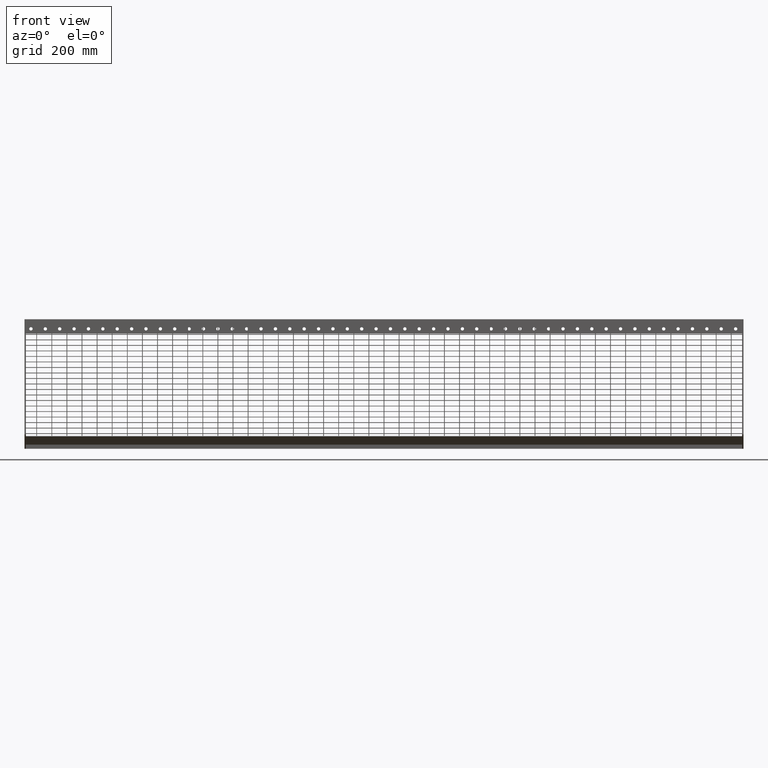
[diagram: clean part render]
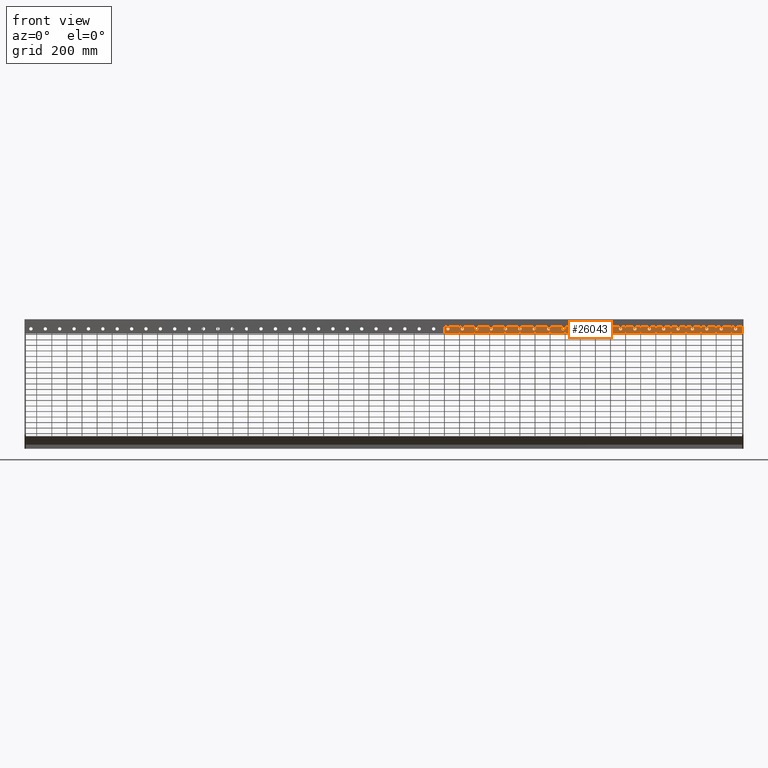
[diagram: same view with one face highlighted and labeled with its STEP entity id]
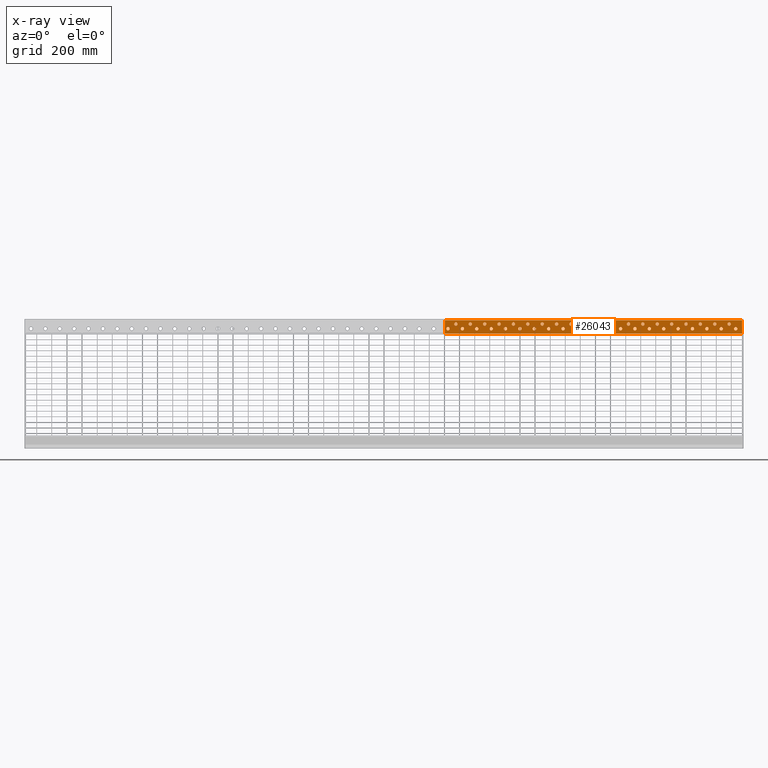
[diagram: x-ray of the same camera — body ghosted, the highlighted face saturated]
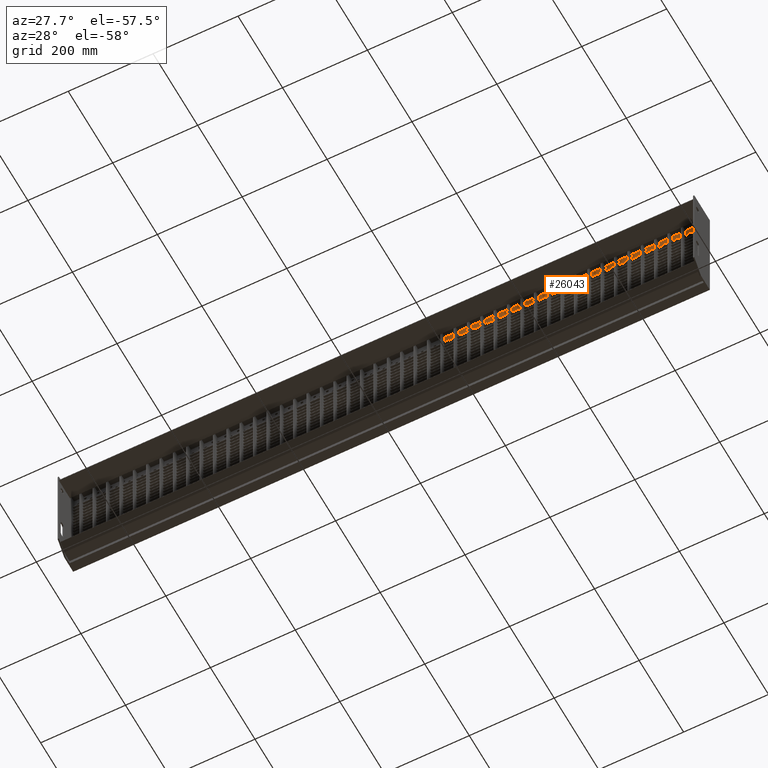
[diagram: same view with one face highlighted and labeled with its STEP entity id]
A machine part, front view. The second image highlights one B-rep face of the part: STEP entity #26043.
The next image is the same camera in x-ray: the body ghosted, the highlighted face saturated — about 0% of this face is hidden behind the body in this view.
A second angle (auxiliary view) of the same face is appended — the face is thin or edge-on in the first view.
In plain terms, the highlighted planar face has unit normal (0, 1, -0).
Its self-contained STEP definition (entity closure, byte-faithful):
#19 = EDGE_LOOP ( 'NONE', ( #31993, #24320 ) ) ;
#87 = VERTEX_POINT ( 'NONE', #10717 ) ;
#92 = AXIS2_PLACEMENT_3D ( 'NONE', #26801, #16553, #40794 ) ;
#114 = VERTEX_POINT ( 'NONE', #35258 ) ;
#116 = CARTESIAN_POINT ( 'NONE',  ( 449.9999999999999400, 68.00000000000028400, -13.50000000000000200 ) ) ;
#148 = CARTESIAN_POINT ( 'NONE',  ( 150.0000000000000000, 68.00000000000028400, -6.500000000000000000 ) ) ;
#180 = CIRCLE ( 'NONE', #29172, 3.499999999999996000 ) ;
#300 = DIRECTION ( 'NONE',  ( 0.0000000000000000000, 0.0000000000000000000, 1.000000000000000000 ) ) ;
#383 = FACE_BOUND ( 'NONE', #15875, .T. ) ;
#574 = VERTEX_POINT ( 'NONE', #24005 ) ;
#648 = DIRECTION ( 'NONE',  ( 0.0000000000000000000, 0.0000000000000000000, 1.000000000000000000 ) ) ;
#803 = CARTESIAN_POINT ( 'NONE',  ( 193.5000000000000000, 68.00000000000000000, -19.99999999999998900 ) ) ;
#838 = EDGE_LOOP ( 'NONE', ( #27460, #30852 ) ) ;
#938 = FACE_BOUND ( 'NONE', #15644, .T. ) ;
#966 = EDGE_LOOP ( 'NONE', ( #19491, #21606 ) ) ;
#1028 = EDGE_CURVE ( 'NONE', #14123, #24584, #27674, .T. ) ;
#1058 = CIRCLE ( 'NONE', #26087, 3.500000000000000400 ) ;
#1279 = ORIENTED_EDGE ( 'NONE', *, *, #39085, .T. ) ;
#1299 = DIRECTION ( 'NONE',  ( 0.0000000000000000000, 0.0000000000000000000, 1.000000000000000000 ) ) ;
#1358 = EDGE_CURVE ( 'NONE', #13199, #10030, #25485, .T. ) ;
#1373 = CARTESIAN_POINT ( 'NONE',  ( 747.0000000000000000, 68.00000000000000000, -2.000000000000001800 ) ) ;
#1461 = FACE_BOUND ( 'NONE', #31322, .T. ) ;
#1487 = CIRCLE ( 'NONE', #6863, 3.499999999999996000 ) ;
#1525 = EDGE_LOOP ( 'NONE', ( #6474, #41832 ) ) ;
#1577 = DIRECTION ( 'NONE',  ( 0.0000000000000000000, 0.0000000000000000000, 1.000000000000000000 ) ) ;
#1656 = AXIS2_PLACEMENT_3D ( 'NONE', #5573, #2159, #32912 ) ;
#1705 = CARTESIAN_POINT ( 'NONE',  ( 493.5000000000000000, 68.00000000000000000, -19.99999999999998900 ) ) ;
#1713 = EDGE_CURVE ( 'NONE', #33043, #34557, #43019, .T. ) ;
#1719 = DIRECTION ( 'NONE',  ( 0.0000000000000000000, 0.0000000000000000000, 1.000000000000000000 ) ) ;
#1742 = AXIS2_PLACEMENT_3D ( 'NONE', #40520, #30240, #33372 ) ;
#1784 = EDGE_LOOP ( 'NONE', ( #9302, #40985 ) ) ;
#1843 = EDGE_CURVE ( 'NONE', #13844, #3526, #32914, .T. ) ;
#1955 = FACE_BOUND ( 'NONE', #1784, .T. ) ;
#1975 = AXIS2_PLACEMENT_3D ( 'NONE', #25357, #24765, #4456 ) ;
#1994 = FACE_BOUND ( 'NONE', #27114, .T. ) ;
#2011 = ORIENTED_EDGE ( 'NONE', *, *, #1713, .T. ) ;
#2036 = DIRECTION ( 'NONE',  ( 0.0000000000000000000, 1.000000000000000000, 0.0000000000000000000 ) ) ;
#2070 = VERTEX_POINT ( 'NONE', #15161 ) ;
#2079 = CARTESIAN_POINT ( 'NONE',  ( 126.7500000000000000, 68.00000000000000000, -29.99999999999999300 ) ) ;
#2084 = CARTESIAN_POINT ( 'NONE',  ( 133.5000000000000000, 68.00000000000000000, -16.49999999999999300 ) ) ;
#2126 = CIRCLE ( 'NONE', #23837, 3.499999999999996000 ) ;
#2159 = DIRECTION ( 'NONE',  ( 0.0000000000000000000, 1.000000000000000000, 0.0000000000000000000 ) ) ;
#2275 = CARTESIAN_POINT ( 'NONE',  ( 283.5000000000000600, 68.00000000000000000, -16.49999999999999300 ) ) ;
#2305 = VERTEX_POINT ( 'NONE', #2943 ) ;
#2400 = DIRECTION ( 'NONE',  ( 0.0000000000000000000, 0.0000000000000000000, 1.000000000000000000 ) ) ;
#2441 = EDGE_CURVE ( 'NONE', #34217, #23666, #30719, .T. ) ;
#2497 = CARTESIAN_POINT ( 'NONE',  ( 313.5000000000000000, 68.00000000000000000, -19.99999999999998900 ) ) ;
#2505 = FACE_BOUND ( 'NONE', #14624, .T. ) ;
#2530 = DIRECTION ( 'NONE',  ( 0.0000000000000000000, 1.000000000000000000, 0.0000000000000000000 ) ) ;
#2531 = CARTESIAN_POINT ( 'NONE',  ( 630.0000000000000000, 68.00000000000028400, -10.00000000000000000 ) ) ;
#2590 = EDGE_CURVE ( 'NONE', #5430, #2070, #36046, .T. ) ;
#2607 = CARTESIAN_POINT ( 'NONE',  ( 463.4999999999999400, 68.00000000000000000, -16.49999999999999300 ) ) ;
#2741 = VERTEX_POINT ( 'NONE', #2607 ) ;
#2839 = CARTESIAN_POINT ( 'NONE',  ( 150.0000000000000000, 68.00000000000028400, -10.00000000000000000 ) ) ;
#2890 = AXIS2_PLACEMENT_3D ( 'NONE', #32246, #14750, #21984 ) ;
#2911 = EDGE_CURVE ( 'NONE', #13240, #37155, #21120, .T. ) ;
#2943 = CARTESIAN_POINT ( 'NONE',  ( 540.0000000000000000, 68.00000000000028400, -13.50000000000000200 ) ) ;
#2965 = DIRECTION ( 'NONE',  ( 0.0000000000000000000, 0.0000000000000000000, 1.000000000000000000 ) ) ;
#3045 = EDGE_CURVE ( 'NONE', #9321, #17452, #25338, .T. ) ;
#3056 = VERTEX_POINT ( 'NONE', #18742 ) ;
#3089 = EDGE_LOOP ( 'NONE', ( #18146, #34042 ) ) ;
#3218 = DIRECTION ( 'NONE',  ( 0.0000000000000000000, 1.000000000000000000, 0.0000000000000000000 ) ) ;
#3282 = DIRECTION ( 'NONE',  ( 0.0000000000000000000, 1.000000000000000000, 0.0000000000000000000 ) ) ;
#3408 = CARTESIAN_POINT ( 'NONE',  ( 600.0000000000000000, 68.00000000000028400, -10.00000000000000000 ) ) ;
#3443 = EDGE_CURVE ( 'NONE', #35384, #33438, #10425, .T. ) ;
#3467 = CARTESIAN_POINT ( 'NONE',  ( 270.0000000000000000, 68.00000000000028400, -13.50000000000000200 ) ) ;
#3508 = CARTESIAN_POINT ( 'NONE',  ( 659.9999999999998900, 68.00000000000028400, -10.00000000000000000 ) ) ;
#3517 = CARTESIAN_POINT ( 'NONE',  ( 643.5000000000000000, 68.00000000000000000, -16.49999999999999300 ) ) ;
#3526 = VERTEX_POINT ( 'NONE', #27476 ) ;
#3598 = FACE_BOUND ( 'NONE', #28999, .T. ) ;
#3680 = DIRECTION ( 'NONE',  ( 0.0000000000000000000, 0.0000000000000000000, 1.000000000000000000 ) ) ;
#3794 = EDGE_CURVE ( 'NONE', #23933, #5015, #43887, .T. ) ;
#3804 = CARTESIAN_POINT ( 'NONE',  ( 403.5000000000000000, 68.00000000000000000, -19.99999999999998900 ) ) ;
#3833 = AXIS2_PLACEMENT_3D ( 'NONE', #15685, #2036, #26206 ) ;
#3969 = CARTESIAN_POINT ( 'NONE',  ( 329.9999999999999400, 68.00000000000028400, -6.500000000000000000 ) ) ;
#3982 = DIRECTION ( 'NONE',  ( 0.0000000000000000000, 1.000000000000000000, 0.0000000000000000000 ) ) ;
#3994 = ORIENTED_EDGE ( 'NONE', *, *, #5844, .T. ) ;
#4034 = ORIENTED_EDGE ( 'NONE', *, *, #26577, .T. ) ;
#4067 = ORIENTED_EDGE ( 'NONE', *, *, #18566, .T. ) ;
#4092 = CARTESIAN_POINT ( 'NONE',  ( 510.0000000000000000, 68.00000000000028400, -13.50000000000000200 ) ) ;
#4190 = DIRECTION ( 'NONE',  ( 0.0000000000000000000, 0.0000000000000000000, 1.000000000000000000 ) ) ;
#4413 = CARTESIAN_POINT ( 'NONE',  ( 493.5000000000000000, 68.00000000000000000, -16.49999999999999300 ) ) ;
#4414 = DIRECTION ( 'NONE',  ( 0.0000000000000000000, 1.000000000000000000, 0.0000000000000000000 ) ) ;
#4448 = VERTEX_POINT ( 'NONE', #13559 ) ;
#4456 = DIRECTION ( 'NONE',  ( 0.0000000000000000000, 0.0000000000000000000, 1.000000000000000000 ) ) ;
#4480 = CARTESIAN_POINT ( 'NONE',  ( 570.0000000000000000, 68.00000000000028400, -10.00000000000000000 ) ) ;
#4489 = CARTESIAN_POINT ( 'NONE',  ( 720.0000000000000000, 68.00000000000028400, -6.500000000000000000 ) ) ;
#4642 = CARTESIAN_POINT ( 'NONE',  ( 433.5000000000000000, 68.00000000000000000, -19.99999999999998900 ) ) ;
#4659 = ORIENTED_EDGE ( 'NONE', *, *, #35027, .T. ) ;
#4776 = ORIENTED_EDGE ( 'NONE', *, *, #34192, .T. ) ;
#4784 = VERTEX_POINT ( 'NONE', #16703 ) ;
#4792 = CARTESIAN_POINT ( 'NONE',  ( 733.4999999999998900, 68.00000000000000000, -19.99999999999998900 ) ) ;
#4808 = CIRCLE ( 'NONE', #21093, 3.500000000000000400 ) ;
#4889 = DIRECTION ( 'NONE',  ( 0.0000000000000000000, 0.0000000000000000000, 1.000000000000000000 ) ) ;
#5015 = VERTEX_POINT ( 'NONE', #7950 ) ;
#5090 = ORIENTED_EDGE ( 'NONE', *, *, #23704, .T. ) ;
#5169 = DIRECTION ( 'NONE',  ( 0.0000000000000000000, 0.0000000000000000000, 1.000000000000000000 ) ) ;
#5332 = CIRCLE ( 'NONE', #18644, 3.499999999999996000 ) ;
#5393 = DIRECTION ( 'NONE',  ( 0.0000000000000000000, 1.000000000000000000, -0.0000000000000000000 ) ) ;
#5430 = VERTEX_POINT ( 'NONE', #116 ) ;
#5554 = AXIS2_PLACEMENT_3D ( 'NONE', #15713, #32805, #32524 ) ;
#5573 = CARTESIAN_POINT ( 'NONE',  ( 613.4999999999998900, 68.00000000000000000, -19.99999999999998900 ) ) ;
#5711 = EDGE_CURVE ( 'NONE', #38559, #24332, #12922, .T. ) ;
#5729 = CIRCLE ( 'NONE', #15910, 3.500000000000000400 ) ;
#5770 = EDGE_LOOP ( 'NONE', ( #18047, #13159 ) ) ;
#5800 = DIRECTION ( 'NONE',  ( 0.0000000000000000000, 0.0000000000000000000, 1.000000000000000000 ) ) ;
#5805 = ORIENTED_EDGE ( 'NONE', *, *, #12878, .T. ) ;
#5844 = EDGE_CURVE ( 'NONE', #19730, #17151, #18735, .T. ) ;
#5944 = AXIS2_PLACEMENT_3D ( 'NONE', #35510, #42043, #4889 ) ;
#6150 = ORIENTED_EDGE ( 'NONE', *, *, #36932, .T. ) ;
#6163 = CIRCLE ( 'NONE', #26486, 3.499999999999996000 ) ;
#6195 = VERTEX_POINT ( 'NONE', #3467 ) ;
#6266 = CARTESIAN_POINT ( 'NONE',  ( 463.4999999999999400, 68.00000000000000000, -19.99999999999998900 ) ) ;
#6289 = CARTESIAN_POINT ( 'NONE',  ( 747.0000000000000000, 68.00000000000000000, -30.00000000000000000 ) ) ;
#6326 = AXIS2_PLACEMENT_3D ( 'NONE', #27845, #40957, #7037 ) ;
#6395 = AXIS2_PLACEMENT_3D ( 'NONE', #24707, #21751, #21883 ) ;
#6399 = DIRECTION ( 'NONE',  ( 0.0000000000000000000, 0.0000000000000000000, 1.000000000000000000 ) ) ;
#6448 = ORIENTED_EDGE ( 'NONE', *, *, #21129, .T. ) ;
#6474 = ORIENTED_EDGE ( 'NONE', *, *, #22088, .T. ) ;
#6563 = DIRECTION ( 'NONE',  ( 0.0000000000000000000, 1.000000000000000000, 0.0000000000000000000 ) ) ;
#6581 = CARTESIAN_POINT ( 'NONE',  ( 193.5000000000000000, 68.00000000000000000, -19.99999999999998900 ) ) ;
#6588 = CIRCLE ( 'NONE', #6395, 3.499999999999996000 ) ;
#6704 = CIRCLE ( 'NONE', #41303, 3.500000000000000400 ) ;
#6716 = FACE_OUTER_BOUND ( 'NONE', #41225, .T. ) ;
#6727 = CARTESIAN_POINT ( 'NONE',  ( 463.4999999999999400, 68.00000000000000000, -23.49999999999998600 ) ) ;
#6741 = DIRECTION ( 'NONE',  ( 0.0000000000000000000, 1.000000000000000000, 0.0000000000000000000 ) ) ;
#6753 = CARTESIAN_POINT ( 'NONE',  ( 270.0000000000000000, 68.00000000000028400, -6.500000000000000000 ) ) ;
#6863 = AXIS2_PLACEMENT_3D ( 'NONE', #17169, #3982, #10933 ) ;
#6910 = VERTEX_POINT ( 'NONE', #33703 ) ;
#6934 = CIRCLE ( 'NONE', #16745, 3.499999999999996000 ) ;
#6993 = EDGE_CURVE ( 'NONE', #32830, #10370, #41076, .T. ) ;
#7001 = CIRCLE ( 'NONE', #27448, 3.500000000000000400 ) ;
#7037 = DIRECTION ( 'NONE',  ( 0.0000000000000000000, 0.0000000000000000000, 1.000000000000000000 ) ) ;
#7048 = EDGE_CURVE ( 'NONE', #17588, #2305, #8109, .T. ) ;
#7053 = DIRECTION ( 'NONE',  ( 0.0000000000000000000, 0.0000000000000000000, 1.000000000000000000 ) ) ;
#7095 = EDGE_LOOP ( 'NONE', ( #43590, #8886 ) ) ;
#7114 = CIRCLE ( 'NONE', #3833, 3.499999999999996000 ) ;
#7139 = VERTEX_POINT ( 'NONE', #16066 ) ;
#7190 = ORIENTED_EDGE ( 'NONE', *, *, #39074, .T. ) ;
#7396 = ORIENTED_EDGE ( 'NONE', *, *, #1843, .T. ) ;
#7486 = CIRCLE ( 'NONE', #24485, 3.500000000000000400 ) ;
#7489 = EDGE_CURVE ( 'NONE', #21617, #25381, #42621, .T. ) ;
#7508 = CIRCLE ( 'NONE', #24350, 3.500000000000000400 ) ;
#7685 = DIRECTION ( 'NONE',  ( 0.0000000000000000000, 1.000000000000000000, 0.0000000000000000000 ) ) ;
#7736 = DIRECTION ( 'NONE',  ( 0.0000000000000000000, 1.000000000000000000, 0.0000000000000000000 ) ) ;
#7801 = CARTESIAN_POINT ( 'NONE',  ( 403.5000000000000000, 68.00000000000000000, -19.99999999999998900 ) ) ;
#7884 = DIRECTION ( 'NONE',  ( 0.0000000000000000000, 1.000000000000000000, 0.0000000000000000000 ) ) ;
#7950 = CARTESIAN_POINT ( 'NONE',  ( 510.0000000000000000, 68.00000000000028400, -6.500000000000000000 ) ) ;
#7996 = AXIS2_PLACEMENT_3D ( 'NONE', #23538, #20134, #26818 ) ;
#8055 = DIRECTION ( 'NONE',  ( 0.0000000000000000000, 0.0000000000000000000, 1.000000000000000000 ) ) ;
#8109 = CIRCLE ( 'NONE', #23984, 3.500000000000000400 ) ;
#8167 = DIRECTION ( 'NONE',  ( 0.0000000000000000000, 1.000000000000000000, 0.0000000000000000000 ) ) ;
#8314 = AXIS2_PLACEMENT_3D ( 'NONE', #31872, #24861, #11514 ) ;
#8341 = FACE_BOUND ( 'NONE', #41007, .T. ) ;
#8370 = VERTEX_POINT ( 'NONE', #43674 ) ;
#8513 = AXIS2_PLACEMENT_3D ( 'NONE', #38930, #18514, #1299 ) ;
#8560 = CIRCLE ( 'NONE', #23890, 3.500000000000000400 ) ;
#8567 = DIRECTION ( 'NONE',  ( 0.0000000000000000000, 1.000000000000000000, 0.0000000000000000000 ) ) ;
#8579 = DIRECTION ( 'NONE',  ( 1.000000000000000000, -0.0000000000000000000, -0.0000000000000000000 ) ) ;
#8641 = DIRECTION ( 'NONE',  ( 0.0000000000000000000, 0.0000000000000000000, 1.000000000000000000 ) ) ;
#8667 = EDGE_CURVE ( 'NONE', #13364, #41112, #16985, .T. ) ;
#8782 = CIRCLE ( 'NONE', #17465, 3.499999999999996000 ) ;
#8846 = VERTEX_POINT ( 'NONE', #20891 ) ;
#8872 = FACE_BOUND ( 'NONE', #29515, .T. ) ;
#8886 = ORIENTED_EDGE ( 'NONE', *, *, #9196, .T. ) ;
#8890 = DIRECTION ( 'NONE',  ( 0.0000000000000000000, 0.0000000000000000000, 1.000000000000000000 ) ) ;
#8987 = DIRECTION ( 'NONE',  ( 0.0000000000000000000, 0.0000000000000000000, 1.000000000000000000 ) ) ;
#8996 = CARTESIAN_POINT ( 'NONE',  ( 403.5000000000000000, 68.00000000000000000, -23.49999999999998600 ) ) ;
#8999 = DIRECTION ( 'NONE',  ( 0.0000000000000000000, 1.000000000000000000, 0.0000000000000000000 ) ) ;
#9032 = CIRCLE ( 'NONE', #9904, 3.499999999999996000 ) ;
#9037 = DIRECTION ( 'NONE',  ( 0.0000000000000000000, 0.0000000000000000000, 1.000000000000000000 ) ) ;
#9067 = CARTESIAN_POINT ( 'NONE',  ( 613.4999999999998900, 68.00000000000000000, -19.99999999999998900 ) ) ;
#9115 = AXIS2_PLACEMENT_3D ( 'NONE', #26551, #19402, #40094 ) ;
#9196 = EDGE_CURVE ( 'NONE', #33313, #87, #36139, .T. ) ;
#9301 = EDGE_LOOP ( 'NONE', ( #42609, #44094 ) ) ;
#9302 = ORIENTED_EDGE ( 'NONE', *, *, #26532, .T. ) ;
#9321 = VERTEX_POINT ( 'NONE', #43437 ) ;
#9346 = CIRCLE ( 'NONE', #17133, 3.500000000000000400 ) ;
#9356 = ORIENTED_EDGE ( 'NONE', *, *, #2590, .T. ) ;
#9361 = VERTEX_POINT ( 'NONE', #17128 ) ;
#9389 = FACE_BOUND ( 'NONE', #966, .T. ) ;
#9416 = CARTESIAN_POINT ( 'NONE',  ( 523.5000000000000000, 68.00000000000000000, -16.49999999999999300 ) ) ;
#9464 = DIRECTION ( 'NONE',  ( 0.0000000000000000000, 1.000000000000000000, 0.0000000000000000000 ) ) ;
#9776 = DIRECTION ( 'NONE',  ( 0.0000000000000000000, 1.000000000000000000, 0.0000000000000000000 ) ) ;
#9904 = AXIS2_PLACEMENT_3D ( 'NONE', #23572, #9776, #43651 ) ;
#9910 = DIRECTION ( 'NONE',  ( 0.0000000000000000000, 0.0000000000000000000, 1.000000000000000000 ) ) ;
#10008 = CIRCLE ( 'NONE', #35833, 3.500000000000000400 ) ;
#10030 = VERTEX_POINT ( 'NONE', #17156 ) ;
#10057 = EDGE_CURVE ( 'NONE', #23938, #27145, #10008, .T. ) ;
#10234 = VERTEX_POINT ( 'NONE', #28737 ) ;
#10311 = VERTEX_POINT ( 'NONE', #19643 ) ;
#10325 = CARTESIAN_POINT ( 'NONE',  ( 659.9999999999998900, 68.00000000000028400, -6.500000000000000000 ) ) ;
#10368 = AXIS2_PLACEMENT_3D ( 'NONE', #26901, #40604, #13561 ) ;
#10370 = VERTEX_POINT ( 'NONE', #19341 ) ;
#10425 = CIRCLE ( 'NONE', #11131, 3.499999999999996000 ) ;
#10475 = FACE_BOUND ( 'NONE', #41373, .T. ) ;
#10667 = CARTESIAN_POINT ( 'NONE',  ( 329.9999999999999400, 68.00000000000028400, -10.00000000000000000 ) ) ;
#10717 = CARTESIAN_POINT ( 'NONE',  ( 613.4999999999998900, 68.00000000000000000, -16.49999999999999300 ) ) ;
#10756 = DIRECTION ( 'NONE',  ( 0.0000000000000000000, 0.0000000000000000000, 1.000000000000000000 ) ) ;
#10847 = DIRECTION ( 'NONE',  ( 0.0000000000000000000, 0.0000000000000000000, 1.000000000000000000 ) ) ;
#10854 = DIRECTION ( 'NONE',  ( 0.0000000000000000000, 1.000000000000000000, 0.0000000000000000000 ) ) ;
#10883 = EDGE_CURVE ( 'NONE', #35441, #14270, #29086, .T. ) ;
#10925 = DIRECTION ( 'NONE',  ( 0.0000000000000000000, 1.000000000000000000, 0.0000000000000000000 ) ) ;
#10933 = DIRECTION ( 'NONE',  ( 0.0000000000000000000, 0.0000000000000000000, 1.000000000000000000 ) ) ;
#11037 = FACE_BOUND ( 'NONE', #25293, .T. ) ;
#11131 = AXIS2_PLACEMENT_3D ( 'NONE', #23909, #37641, #300 ) ;
#11430 = AXIS2_PLACEMENT_3D ( 'NONE', #40453, #36906, #23317 ) ;
#11444 = EDGE_LOOP ( 'NONE', ( #19608, #24850 ) ) ;
#11463 = EDGE_LOOP ( 'NONE', ( #26677, #29849 ) ) ;
#11514 = DIRECTION ( 'NONE',  ( 0.0000000000000000000, 0.0000000000000000000, 1.000000000000000000 ) ) ;
#11559 = FACE_BOUND ( 'NONE', #18890, .T. ) ;
#11656 = EDGE_LOOP ( 'NONE', ( #19704, #29544 ) ) ;
#11731 = CIRCLE ( 'NONE', #13060, 3.500000000000000400 ) ;
#11745 = ORIENTED_EDGE ( 'NONE', *, *, #21012, .T. ) ;
#11778 = ORIENTED_EDGE ( 'NONE', *, *, #43527, .T. ) ;
#11814 = CARTESIAN_POINT ( 'NONE',  ( 733.4999999999998900, 68.00000000000000000, -19.99999999999998900 ) ) ;
#11927 = DIRECTION ( 'NONE',  ( 0.0000000000000000000, 1.000000000000000000, 0.0000000000000000000 ) ) ;
#12079 = DIRECTION ( 'NONE',  ( 0.0000000000000000000, 1.000000000000000000, 0.0000000000000000000 ) ) ;
#12081 = VERTEX_POINT ( 'NONE', #43581 ) ;
#12132 = DIRECTION ( 'NONE',  ( 0.0000000000000000000, 0.0000000000000000000, 1.000000000000000000 ) ) ;
#12167 = CIRCLE ( 'NONE', #15271, 3.500000000000000400 ) ;
#12274 = ORIENTED_EDGE ( 'NONE', *, *, #41360, .T. ) ;
#12287 = VERTEX_POINT ( 'NONE', #19548 ) ;
#12373 = CARTESIAN_POINT ( 'NONE',  ( 703.4999999999998900, 68.00000000000000000, -19.99999999999998900 ) ) ;
#12524 = AXIS2_PLACEMENT_3D ( 'NONE', #3804, #21138, #27539 ) ;
#12618 = FACE_BOUND ( 'NONE', #29151, .T. ) ;
#12641 = ORIENTED_EDGE ( 'NONE', *, *, #37786, .T. ) ;
#12674 = VERTEX_POINT ( 'NONE', #6727 ) ;
#12723 = EDGE_CURVE ( 'NONE', #37155, #13240, #40046, .T. ) ;
#12741 = DIRECTION ( 'NONE',  ( 0.0000000000000000000, 0.0000000000000000000, 1.000000000000000000 ) ) ;
#12755 = EDGE_LOOP ( 'NONE', ( #41295, #17218 ) ) ;
#12785 = CARTESIAN_POINT ( 'NONE',  ( 510.0000000000000000, 68.00000000000028400, -10.00000000000000000 ) ) ;
#12790 = DIRECTION ( 'NONE',  ( 0.0000000000000000000, 0.0000000000000000000, 1.000000000000000000 ) ) ;
#12878 = EDGE_CURVE ( 'NONE', #14696, #40796, #13977, .T. ) ;
#12911 = CARTESIAN_POINT ( 'NONE',  ( 659.9999999999998900, 68.00000000000028400, -13.50000000000000200 ) ) ;
#12922 = CIRCLE ( 'NONE', #20522, 3.499999999999996000 ) ;
#12924 = CARTESIAN_POINT ( 'NONE',  ( 193.5000000000000000, 68.00000000000000000, -23.49999999999998600 ) ) ;
#13060 = AXIS2_PLACEMENT_3D ( 'NONE', #26728, #2530, #23584 ) ;
#13090 = CIRCLE ( 'NONE', #14040, 3.499999999999996000 ) ;
#13116 = ORIENTED_EDGE ( 'NONE', *, *, #35642, .T. ) ;
#13159 = ORIENTED_EDGE ( 'NONE', *, *, #19998, .T. ) ;
#13199 = VERTEX_POINT ( 'NONE', #25335 ) ;
#13217 = EDGE_CURVE ( 'NONE', #2305, #17588, #25075, .T. ) ;
#13240 = VERTEX_POINT ( 'NONE', #14987 ) ;
#13364 = VERTEX_POINT ( 'NONE', #39774 ) ;
#13412 = DIRECTION ( 'NONE',  ( 0.0000000000000000000, 0.0000000000000000000, 1.000000000000000000 ) ) ;
#13522 = EDGE_CURVE ( 'NONE', #24584, #14123, #7001, .T. ) ;
#13559 = CARTESIAN_POINT ( 'NONE',  ( 433.5000000000000000, 68.00000000000000000, -16.49999999999999300 ) ) ;
#13561 = DIRECTION ( 'NONE',  ( 0.0000000000000000000, 0.0000000000000000000, 1.000000000000000000 ) ) ;
#13725 = CIRCLE ( 'NONE', #2890, 3.499999999999996000 ) ;
#13844 = VERTEX_POINT ( 'NONE', #43103 ) ;
#13848 = CARTESIAN_POINT ( 'NONE',  ( 690.0000000000000000, 68.00000000000028400, -10.00000000000000000 ) ) ;
#13872 = EDGE_LOOP ( 'NONE', ( #6150, #21245 ) ) ;
#13977 = CIRCLE ( 'NONE', #21469, 3.499999999999996000 ) ;
#14040 = AXIS2_PLACEMENT_3D ( 'NONE', #21415, #42083, #38853 ) ;
#14092 = EDGE_CURVE ( 'NONE', #2741, #12674, #19560, .T. ) ;
#14106 = EDGE_CURVE ( 'NONE', #114, #15909, #41949, .T. ) ;
#14123 = VERTEX_POINT ( 'NONE', #20202 ) ;
#14270 = VERTEX_POINT ( 'NONE', #27926 ) ;
#14454 = EDGE_CURVE ( 'NONE', #33438, #35384, #39287, .T. ) ;
#14469 = AXIS2_PLACEMENT_3D ( 'NONE', #40428, #3282, #20173 ) ;
#14493 = VERTEX_POINT ( 'NONE', #12911 ) ;
#14510 = CARTESIAN_POINT ( 'NONE',  ( 240.0000000000000000, 68.00000000000028400, -10.00000000000000000 ) ) ;
#14525 = CIRCLE ( 'NONE', #5554, 3.500000000000000400 ) ;
#14537 = DIRECTION ( 'NONE',  ( 0.0000000000000000000, 1.000000000000000000, 0.0000000000000000000 ) ) ;
#14546 = ORIENTED_EDGE ( 'NONE', *, *, #37519, .T. ) ;
#14558 = VERTEX_POINT ( 'NONE', #44088 ) ;
#14590 = DIRECTION ( 'NONE',  ( 0.0000000000000000000, 0.0000000000000000000, 1.000000000000000000 ) ) ;
#14598 = ORIENTED_EDGE ( 'NONE', *, *, #3443, .T. ) ;
#14624 = EDGE_LOOP ( 'NONE', ( #34526, #12641 ) ) ;
#14627 = EDGE_CURVE ( 'NONE', #14558, #42360, #1487, .T. ) ;
#14696 = VERTEX_POINT ( 'NONE', #24446 ) ;
#14723 = FACE_BOUND ( 'NONE', #27989, .T. ) ;
#14750 = DIRECTION ( 'NONE',  ( 0.0000000000000000000, 1.000000000000000000, 0.0000000000000000000 ) ) ;
#14772 = FACE_BOUND ( 'NONE', #20409, .T. ) ;
#14927 = CARTESIAN_POINT ( 'NONE',  ( 390.0000000000000000, 68.00000000000028400, -10.00000000000000000 ) ) ;
#14933 = AXIS2_PLACEMENT_3D ( 'NONE', #6581, #14937, #38735 ) ;
#14937 = DIRECTION ( 'NONE',  ( 0.0000000000000000000, 1.000000000000000000, 0.0000000000000000000 ) ) ;
#14987 = CARTESIAN_POINT ( 'NONE',  ( 193.5000000000000000, 68.00000000000000000, -16.49999999999999300 ) ) ;
#15022 = EDGE_CURVE ( 'NONE', #43906, #12081, #39728, .T. ) ;
#15126 = VERTEX_POINT ( 'NONE', #22684 ) ;
#15161 = CARTESIAN_POINT ( 'NONE',  ( 449.9999999999999400, 68.00000000000028400, -6.500000000000000000 ) ) ;
#15185 = ORIENTED_EDGE ( 'NONE', *, *, #14627, .T. ) ;
#15228 = AXIS2_PLACEMENT_3D ( 'NONE', #39071, #32181, #35203 ) ;
#15271 = AXIS2_PLACEMENT_3D ( 'NONE', #14927, #32119, #31845 ) ;
#15456 = DIRECTION ( 'NONE',  ( 0.0000000000000000000, 1.000000000000000000, 0.0000000000000000000 ) ) ;
#15581 = CARTESIAN_POINT ( 'NONE',  ( 690.0000000000000000, 68.00000000000028400, -6.500000000000000000 ) ) ;
#15644 = EDGE_LOOP ( 'NONE', ( #19373, #32696 ) ) ;
#15675 = CARTESIAN_POINT ( 'NONE',  ( 210.0000000000000000, 68.00000000000028400, -10.00000000000000000 ) ) ;
#15685 = CARTESIAN_POINT ( 'NONE',  ( 283.5000000000000600, 68.00000000000000000, -19.99999999999998900 ) ) ;
#15686 = AXIS2_PLACEMENT_3D ( 'NONE', #3408, #37003, #9910 ) ;
#15713 = CARTESIAN_POINT ( 'NONE',  ( 240.0000000000000000, 68.00000000000028400, -10.00000000000000000 ) ) ;
#15727 = ORIENTED_EDGE ( 'NONE', *, *, #12723, .T. ) ;
#15796 = FACE_BOUND ( 'NONE', #12755, .T. ) ;
#15829 = LINE ( 'NONE', #34425, #35019 ) ;
#15875 = EDGE_LOOP ( 'NONE', ( #36972, #23820 ) ) ;
#15909 = VERTEX_POINT ( 'NONE', #28004 ) ;
#15910 = AXIS2_PLACEMENT_3D ( 'NONE', #17757, #4414, #31883 ) ;
#15951 = CARTESIAN_POINT ( 'NONE',  ( 703.4999999999998900, 68.00000000000000000, -16.49999999999999300 ) ) ;
#15970 = AXIS2_PLACEMENT_3D ( 'NONE', #23463, #33738, #13412 ) ;
#16055 = CIRCLE ( 'NONE', #38474, 3.500000000000000400 ) ;
#16066 = CARTESIAN_POINT ( 'NONE',  ( 300.0000000000000000, 68.00000000000028400, -13.50000000000000200 ) ) ;
#16125 = DIRECTION ( 'NONE',  ( 0.0000000000000000000, 0.0000000000000000000, 1.000000000000000000 ) ) ;
#16163 = CARTESIAN_POINT ( 'NONE',  ( 390.0000000000000000, 68.00000000000028400, -10.00000000000000000 ) ) ;
#16240 = ORIENTED_EDGE ( 'NONE', *, *, #36723, .T. ) ;
#16243 = DIRECTION ( 'NONE',  ( 0.0000000000000000000, 1.000000000000000000, 0.0000000000000000000 ) ) ;
#16321 = DIRECTION ( 'NONE',  ( 0.0000000000000000000, 0.0000000000000000000, 1.000000000000000000 ) ) ;
#16452 = EDGE_LOOP ( 'NONE', ( #2011, #16240 ) ) ;
#16506 = EDGE_CURVE ( 'NONE', #31179, #43796, #39600, .T. ) ;
#16513 = DIRECTION ( 'NONE',  ( 0.0000000000000000000, 0.0000000000000000000, 1.000000000000000000 ) ) ;
#16532 = EDGE_CURVE ( 'NONE', #12081, #43906, #7114, .T. ) ;
#16535 = CARTESIAN_POINT ( 'NONE',  ( 570.0000000000000000, 68.00000000000028400, -10.00000000000000000 ) ) ;
#16553 = DIRECTION ( 'NONE',  ( 0.0000000000000000000, 1.000000000000000000, 0.0000000000000000000 ) ) ;
#16623 = ORIENTED_EDGE ( 'NONE', *, *, #21793, .T. ) ;
#16655 = VERTEX_POINT ( 'NONE', #37124 ) ;
#16703 = CARTESIAN_POINT ( 'NONE',  ( 600.0000000000000000, 68.00000000000028400, -6.500000000000000000 ) ) ;
#16730 = CIRCLE ( 'NONE', #30539, 3.500000000000000400 ) ;
#16745 = AXIS2_PLACEMENT_3D ( 'NONE', #30131, #36738, #16321 ) ;
#16778 = CARTESIAN_POINT ( 'NONE',  ( 449.9999999999999400, 68.00000000000028400, -10.00000000000000000 ) ) ;
#16785 = ORIENTED_EDGE ( 'NONE', *, *, #14454, .T. ) ;
#16837 = DIRECTION ( 'NONE',  ( 0.0000000000000000000, 0.0000000000000000000, 1.000000000000000000 ) ) ;
#16850 = VERTEX_POINT ( 'NONE', #31712 ) ;
#16985 = LINE ( 'NONE', #42485, #36691 ) ;
#16991 = CARTESIAN_POINT ( 'NONE',  ( 690.0000000000000000, 68.00000000000028400, -10.00000000000000000 ) ) ;
#17050 = CARTESIAN_POINT ( 'NONE',  ( 733.4999999999998900, 68.00000000000000000, -16.49999999999999300 ) ) ;
#17058 = ORIENTED_EDGE ( 'NONE', *, *, #3045, .T. ) ;
#17122 = AXIS2_PLACEMENT_3D ( 'NONE', #34488, #27316, #21069 ) ;
#17128 = CARTESIAN_POINT ( 'NONE',  ( 733.4999999999998900, 68.00000000000000000, -23.49999999999998600 ) ) ;
#17133 = AXIS2_PLACEMENT_3D ( 'NONE', #18289, #21711, #42789 ) ;
#17141 = DIRECTION ( 'NONE',  ( 0.0000000000000000000, 0.0000000000000000000, 1.000000000000000000 ) ) ;
#17151 = VERTEX_POINT ( 'NONE', #19328 ) ;
#17156 = CARTESIAN_POINT ( 'NONE',  ( 180.0000000000000000, 68.00000000000028400, -13.50000000000000200 ) ) ;
#17169 = CARTESIAN_POINT ( 'NONE',  ( 583.4999999999998900, 68.00000000000000000, -19.99999999999998900 ) ) ;
#17218 = ORIENTED_EDGE ( 'NONE', *, *, #22230, .T. ) ;
#17348 = ORIENTED_EDGE ( 'NONE', *, *, #18091, .T. ) ;
#17373 = FACE_BOUND ( 'NONE', #1525, .T. ) ;
#17452 = VERTEX_POINT ( 'NONE', #31071 ) ;
#17465 = AXIS2_PLACEMENT_3D ( 'NONE', #42990, #42562, #22172 ) ;
#17588 = VERTEX_POINT ( 'NONE', #28384 ) ;
#17614 = DIRECTION ( 'NONE',  ( 0.0000000000000000000, 0.0000000000000000000, 1.000000000000000000 ) ) ;
#17709 = CARTESIAN_POINT ( 'NONE',  ( 673.4999999999998900, 68.00000000000000000, -19.99999999999998900 ) ) ;
#17757 = CARTESIAN_POINT ( 'NONE',  ( 659.9999999999998900, 68.00000000000028400, -10.00000000000000000 ) ) ;
#17857 = AXIS2_PLACEMENT_3D ( 'NONE', #17709, #27672, #648 ) ;
#17879 = DIRECTION ( 'NONE',  ( 0.0000000000000000000, 1.000000000000000000, 0.0000000000000000000 ) ) ;
#17878 = CIRCLE ( 'NONE', #19330, 3.499999999999996000 ) ;
#17890 = AXIS2_PLACEMENT_3D ( 'NONE', #2531, #36424, #2965 ) ;
#17904 = ORIENTED_EDGE ( 'NONE', *, *, #36846, .T. ) ;
#18017 = EDGE_CURVE ( 'NONE', #87, #33313, #180, .T. ) ;
#18047 = ORIENTED_EDGE ( 'NONE', *, *, #22882, .T. ) ;
#18091 = EDGE_CURVE ( 'NONE', #28252, #41112, #34220, .T. ) ;
#18128 = DIRECTION ( 'NONE',  ( 0.0000000000000000000, 1.000000000000000000, 0.0000000000000000000 ) ) ;
#18130 = AXIS2_PLACEMENT_3D ( 'NONE', #18803, #25342, #12132 ) ;
#18146 = ORIENTED_EDGE ( 'NONE', *, *, #43648, .T. ) ;
#18153 = DIRECTION ( 'NONE',  ( 0.0000000000000000000, 1.000000000000000000, 0.0000000000000000000 ) ) ;
#18289 = CARTESIAN_POINT ( 'NONE',  ( 180.0000000000000000, 68.00000000000028400, -10.00000000000000000 ) ) ;
#18423 = EDGE_LOOP ( 'NONE', ( #17904, #29996 ) ) ;
#18483 = CARTESIAN_POINT ( 'NONE',  ( 329.9999999999999400, 68.00000000000028400, -13.50000000000000200 ) ) ;
#18514 = DIRECTION ( 'NONE',  ( 0.0000000000000000000, 1.000000000000000000, 0.0000000000000000000 ) ) ;
#18566 = EDGE_CURVE ( 'NONE', #27145, #23938, #14525, .T. ) ;
#18644 = AXIS2_PLACEMENT_3D ( 'NONE', #1705, #32132, #28710 ) ;
#18675 = EDGE_CURVE ( 'NONE', #39622, #42836, #33606, .T. ) ;
#18735 = CIRCLE ( 'NONE', #8314, 3.499999999999996000 ) ;
#18742 = CARTESIAN_POINT ( 'NONE',  ( 480.0000000000000000, 68.00000000000028400, -6.500000000000000000 ) ) ;
#18803 = CARTESIAN_POINT ( 'NONE',  ( 133.5000000000000000, 68.00000000000000000, -19.99999999999998900 ) ) ;
#18890 = EDGE_LOOP ( 'NONE', ( #20633, #12274 ) ) ;
#18929 = CARTESIAN_POINT ( 'NONE',  ( 510.0000000000000000, 68.00000000000028400, -10.00000000000000000 ) ) ;
#18995 = FACE_BOUND ( 'NONE', #18423, .T. ) ;
#19016 = ORIENTED_EDGE ( 'NONE', *, *, #43035, .T. ) ;
#19093 = EDGE_CURVE ( 'NONE', #19215, #12287, #7508, .T. ) ;
#19104 = EDGE_CURVE ( 'NONE', #2070, #5430, #34666, .T. ) ;
#19144 = CARTESIAN_POINT ( 'NONE',  ( 133.5000000000000000, 68.00000000000000000, -19.99999999999998900 ) ) ;
#19163 = ORIENTED_EDGE ( 'NONE', *, *, #6993, .T. ) ;
#19215 = VERTEX_POINT ( 'NONE', #148 ) ;
#19244 = CARTESIAN_POINT ( 'NONE',  ( 583.4999999999998900, 68.00000000000000000, -19.99999999999998900 ) ) ;
#19290 = CARTESIAN_POINT ( 'NONE',  ( 553.5000000000000000, 68.00000000000000000, -19.99999999999998900 ) ) ;
#19328 = CARTESIAN_POINT ( 'NONE',  ( 343.5000000000000000, 68.00000000000000000, -23.49999999999998600 ) ) ;
#19330 = AXIS2_PLACEMENT_3D ( 'NONE', #11814, #35624, #1719 ) ;
#19341 = CARTESIAN_POINT ( 'NONE',  ( 223.5000000000000000, 68.00000000000000000, -16.49999999999999300 ) ) ;
#19373 = ORIENTED_EDGE ( 'NONE', *, *, #14092, .T. ) ;
#19402 = DIRECTION ( 'NONE',  ( 0.0000000000000000000, 1.000000000000000000, 0.0000000000000000000 ) ) ;
#19434 = CIRCLE ( 'NONE', #22448, 3.499999999999996000 ) ;
#19467 = DIRECTION ( 'NONE',  ( 0.0000000000000000000, 1.000000000000000000, 0.0000000000000000000 ) ) ;
#19490 = FACE_BOUND ( 'NONE', #43847, .T. ) ;
#19491 = ORIENTED_EDGE ( 'NONE', *, *, #3794, .T. ) ;
#19548 = CARTESIAN_POINT ( 'NONE',  ( 150.0000000000000000, 68.00000000000028400, -13.50000000000000200 ) ) ;
#19560 = CIRCLE ( 'NONE', #11430, 3.499999999999996000 ) ;
#19608 = ORIENTED_EDGE ( 'NONE', *, *, #36066, .T. ) ;
#19643 = CARTESIAN_POINT ( 'NONE',  ( 403.5000000000000000, 68.00000000000000000, -16.49999999999999300 ) ) ;
#19704 = ORIENTED_EDGE ( 'NONE', *, *, #41386, .T. ) ;
#19730 = VERTEX_POINT ( 'NONE', #36702 ) ;
#19844 = AXIS2_PLACEMENT_3D ( 'NONE', #31211, #10854, #34661 ) ;
#19998 = EDGE_CURVE ( 'NONE', #16850, #22948, #21293, .T. ) ;
#20012 = CARTESIAN_POINT ( 'NONE',  ( 600.0000000000000000, 68.00000000000028400, -13.50000000000000200 ) ) ;
#20049 = FACE_BOUND ( 'NONE', #23713, .T. ) ;
#20071 = EDGE_CURVE ( 'NONE', #34026, #15126, #1058, .T. ) ;
#20097 = CIRCLE ( 'NONE', #23607, 3.499999999999996000 ) ;
#20134 = DIRECTION ( 'NONE',  ( 0.0000000000000000000, 1.000000000000000000, 0.0000000000000000000 ) ) ;
#20173 = DIRECTION ( 'NONE',  ( 0.0000000000000000000, 0.0000000000000000000, 1.000000000000000000 ) ) ;
#20202 = CARTESIAN_POINT ( 'NONE',  ( 690.0000000000000000, 68.00000000000028400, -13.50000000000000200 ) ) ;
#20301 = AXIS2_PLACEMENT_3D ( 'NONE', #19244, #8999, #16125 ) ;
#20409 = EDGE_LOOP ( 'NONE', ( #31695, #37264 ) ) ;
#20509 = EDGE_CURVE ( 'NONE', #12674, #2741, #44105, .T. ) ;
#20522 = AXIS2_PLACEMENT_3D ( 'NONE', #40051, #16243, #16837 ) ;
#20633 = ORIENTED_EDGE ( 'NONE', *, *, #22116, .T. ) ;
#20891 = CARTESIAN_POINT ( 'NONE',  ( 420.0000000000000000, 68.00000000000028400, -13.50000000000000200 ) ) ;
#20892 = DIRECTION ( 'NONE',  ( 0.0000000000000000000, 0.0000000000000000000, 1.000000000000000000 ) ) ;
#20899 = CARTESIAN_POINT ( 'NONE',  ( -823.1577310586392300, 68.00000000000000000, -30.00000000000000000 ) ) ;
#20924 = EDGE_CURVE ( 'NONE', #5015, #23933, #33385, .T. ) ;
#20999 = AXIS2_PLACEMENT_3D ( 'NONE', #41430, #38192, #20892 ) ;
#21012 = EDGE_CURVE ( 'NONE', #17151, #19730, #9032, .T. ) ;
#21018 = VERTEX_POINT ( 'NONE', #17050 ) ;
#21037 = DIRECTION ( 'NONE',  ( 0.0000000000000000000, 0.0000000000000000000, 1.000000000000000000 ) ) ;
#21069 = DIRECTION ( 'NONE',  ( 0.0000000000000000000, 0.0000000000000000000, 1.000000000000000000 ) ) ;
#21070 = VERTEX_POINT ( 'NONE', #20012 ) ;
#21093 = AXIS2_PLACEMENT_3D ( 'NONE', #3508, #3218, #26948 ) ;
#21099 = CARTESIAN_POINT ( 'NONE',  ( 720.0000000000000000, 68.00000000000028400, -13.50000000000000200 ) ) ;
#21120 = CIRCLE ( 'NONE', #40435, 3.499999999999996000 ) ;
#21129 = EDGE_CURVE ( 'NONE', #37140, #28252, #24342, .T. ) ;
#21138 = DIRECTION ( 'NONE',  ( 0.0000000000000000000, 1.000000000000000000, 0.0000000000000000000 ) ) ;
#21245 = ORIENTED_EDGE ( 'NONE', *, *, #19093, .T. ) ;
#21293 = CIRCLE ( 'NONE', #18130, 3.499999999999996000 ) ;
#21415 = CARTESIAN_POINT ( 'NONE',  ( 223.5000000000000000, 68.00000000000000000, -19.99999999999998900 ) ) ;
#21469 = AXIS2_PLACEMENT_3D ( 'NONE', #12373, #12079, #42678 ) ;
#21577 = EDGE_CURVE ( 'NONE', #16655, #8846, #29383, .T. ) ;
#21606 = ORIENTED_EDGE ( 'NONE', *, *, #20924, .T. ) ;
#21617 = VERTEX_POINT ( 'NONE', #4489 ) ;
#21640 = CIRCLE ( 'NONE', #7996, 3.499999999999996000 ) ;
#21711 = DIRECTION ( 'NONE',  ( 0.0000000000000000000, 1.000000000000000000, 0.0000000000000000000 ) ) ;
#21751 = DIRECTION ( 'NONE',  ( 0.0000000000000000000, 1.000000000000000000, 0.0000000000000000000 ) ) ;
#21793 = EDGE_CURVE ( 'NONE', #8846, #16655, #42176, .T. ) ;
#21883 = DIRECTION ( 'NONE',  ( 0.0000000000000000000, 0.0000000000000000000, 1.000000000000000000 ) ) ;
#21984 = DIRECTION ( 'NONE',  ( 0.0000000000000000000, 0.0000000000000000000, 1.000000000000000000 ) ) ;
#22082 = DIRECTION ( 'NONE',  ( 0.0000000000000000000, 1.000000000000000000, 0.0000000000000000000 ) ) ;
#22088 = EDGE_CURVE ( 'NONE', #6195, #27405, #24013, .T. ) ;
#22116 = EDGE_CURVE ( 'NONE', #27383, #34159, #29341, .T. ) ;
#22172 = DIRECTION ( 'NONE',  ( 0.0000000000000000000, 0.0000000000000000000, 1.000000000000000000 ) ) ;
#22230 = EDGE_CURVE ( 'NONE', #14270, #35441, #16055, .T. ) ;
#22249 = VERTEX_POINT ( 'NONE', #8996 ) ;
#22356 = CIRCLE ( 'NONE', #42140, 3.499999999999996000 ) ;
#22383 = AXIS2_PLACEMENT_3D ( 'NONE', #6266, #6563, #16513 ) ;
#22420 = CARTESIAN_POINT ( 'NONE',  ( 253.5000000000000000, 68.00000000000000000, -23.49999999999998600 ) ) ;
#22441 = EDGE_LOOP ( 'NONE', ( #15185, #14546 ) ) ;
#22448 = AXIS2_PLACEMENT_3D ( 'NONE', #40757, #40479, #40618 ) ;
#22607 = CIRCLE ( 'NONE', #92, 3.499999999999996000 ) ;
#22656 = CIRCLE ( 'NONE', #28269, 3.500000000000000400 ) ;
#22684 = CARTESIAN_POINT ( 'NONE',  ( 210.0000000000000000, 68.00000000000028400, -6.500000000000000000 ) ) ;
#22764 = VECTOR ( 'NONE', #24315, 1000.000000000000000 ) ;
#22831 = AXIS2_PLACEMENT_3D ( 'NONE', #34261, #41101, #3680 ) ;
#22872 = DIRECTION ( 'NONE',  ( 0.0000000000000000000, 0.0000000000000000000, 1.000000000000000000 ) ) ;
#22882 = EDGE_CURVE ( 'NONE', #22948, #16850, #22356, .T. ) ;
#22948 = VERTEX_POINT ( 'NONE', #2084 ) ;
#22973 = EDGE_CURVE ( 'NONE', #26365, #44049, #8560, .T. ) ;
#22996 = CARTESIAN_POINT ( 'NONE',  ( 630.0000000000000000, 68.00000000000028400, -13.50000000000000200 ) ) ;
#23062 = DIRECTION ( 'NONE',  ( 0.0000000000000000000, 0.0000000000000000000, 1.000000000000000000 ) ) ;
#23152 = DIRECTION ( 'NONE',  ( 0.0000000000000000000, 1.000000000000000000, 0.0000000000000000000 ) ) ;
#23187 = CIRCLE ( 'NONE', #20301, 3.499999999999996000 ) ;
#23228 = CARTESIAN_POINT ( 'NONE',  ( 360.0000000000000000, 68.00000000000028400, -10.00000000000000000 ) ) ;
#23285 = DIRECTION ( 'NONE',  ( 0.0000000000000000000, 0.0000000000000000000, 1.000000000000000000 ) ) ;
#23290 = ORIENTED_EDGE ( 'NONE', *, *, #14106, .T. ) ;
#23317 = DIRECTION ( 'NONE',  ( 0.0000000000000000000, 0.0000000000000000000, 1.000000000000000000 ) ) ;
#23463 = CARTESIAN_POINT ( 'NONE',  ( 553.5000000000000000, 68.00000000000000000, -19.99999999999998900 ) ) ;
#23538 = CARTESIAN_POINT ( 'NONE',  ( 433.5000000000000000, 68.00000000000000000, -19.99999999999998900 ) ) ;
#23572 = CARTESIAN_POINT ( 'NONE',  ( 343.5000000000000000, 68.00000000000000000, -19.99999999999998900 ) ) ;
#23584 = DIRECTION ( 'NONE',  ( 0.0000000000000000000, 0.0000000000000000000, 1.000000000000000000 ) ) ;
#23607 = AXIS2_PLACEMENT_3D ( 'NONE', #4792, #7736, #14590 ) ;
#23666 = VERTEX_POINT ( 'NONE', #9416 ) ;
#23704 = EDGE_CURVE ( 'NONE', #14493, #42870, #4808, .T. ) ;
#23712 = FACE_BOUND ( 'NONE', #40663, .T. ) ;
#23713 = EDGE_LOOP ( 'NONE', ( #16785, #14598 ) ) ;
#23756 = FACE_BOUND ( 'NONE', #11444, .T. ) ;
#23818 = VERTEX_POINT ( 'NONE', #31416 ) ;
#23820 = ORIENTED_EDGE ( 'NONE', *, *, #30268, .T. ) ;
#23837 = AXIS2_PLACEMENT_3D ( 'NONE', #33231, #8567, #32497 ) ;
#23890 = AXIS2_PLACEMENT_3D ( 'NONE', #16163, #36727, #9037 ) ;
#23909 = CARTESIAN_POINT ( 'NONE',  ( 253.5000000000000000, 68.00000000000000000, -19.99999999999998900 ) ) ;
#23933 = VERTEX_POINT ( 'NONE', #4092 ) ;
#23938 = VERTEX_POINT ( 'NONE', #41530 ) ;
#23960 = CARTESIAN_POINT ( 'NONE',  ( 643.5000000000000000, 68.00000000000000000, -23.49999999999998600 ) ) ;
#23966 = AXIS2_PLACEMENT_3D ( 'NONE', #32133, #5393, #8641 ) ;
#23984 = AXIS2_PLACEMENT_3D ( 'NONE', #43392, #19467, #2400 ) ;
#24005 = CARTESIAN_POINT ( 'NONE',  ( 300.0000000000000000, 68.00000000000028400, -6.500000000000000000 ) ) ;
#24013 = CIRCLE ( 'NONE', #1975, 3.500000000000000400 ) ;
#24199 = CARTESIAN_POINT ( 'NONE',  ( 163.5000000000000000, 68.00000000000000000, -16.49999999999999300 ) ) ;
#24261 = CARTESIAN_POINT ( 'NONE',  ( 210.0000000000000000, 68.00000000000028400, -10.00000000000000000 ) ) ;
#24315 = DIRECTION ( 'NONE',  ( 1.000000000000000000, -0.0000000000000000000, -0.0000000000000000000 ) ) ;
#24320 = ORIENTED_EDGE ( 'NONE', *, *, #16532, .T. ) ;
#24332 = VERTEX_POINT ( 'NONE', #24199 ) ;
#24342 = LINE ( 'NONE', #20899, #22764 ) ;
#24350 = AXIS2_PLACEMENT_3D ( 'NONE', #2839, #23152, #6399 ) ;
#24446 = CARTESIAN_POINT ( 'NONE',  ( 703.4999999999998900, 68.00000000000000000, -23.49999999999998600 ) ) ;
#24485 = AXIS2_PLACEMENT_3D ( 'NONE', #16535, #40186, #43729 ) ;
#24584 = VERTEX_POINT ( 'NONE', #15581 ) ;
#24707 = CARTESIAN_POINT ( 'NONE',  ( 673.4999999999998900, 68.00000000000000000, -19.99999999999998900 ) ) ;
#24765 = DIRECTION ( 'NONE',  ( 0.0000000000000000000, 1.000000000000000000, 0.0000000000000000000 ) ) ;
#24794 = EDGE_CURVE ( 'NONE', #21070, #4784, #35537, .T. ) ;
#24850 = ORIENTED_EDGE ( 'NONE', *, *, #2441, .T. ) ;
#24861 = DIRECTION ( 'NONE',  ( 0.0000000000000000000, 1.000000000000000000, 0.0000000000000000000 ) ) ;
#25061 = CARTESIAN_POINT ( 'NONE',  ( 329.9999999999999400, 68.00000000000028400, -10.00000000000000000 ) ) ;
#25075 = CIRCLE ( 'NONE', #15228, 3.500000000000000400 ) ;
#25293 = EDGE_LOOP ( 'NONE', ( #31265, #33829 ) ) ;
#25335 = CARTESIAN_POINT ( 'NONE',  ( 180.0000000000000000, 68.00000000000028400, -6.500000000000000000 ) ) ;
#25338 = CIRCLE ( 'NONE', #27591, 3.499999999999996000 ) ;
#25342 = DIRECTION ( 'NONE',  ( 0.0000000000000000000, 1.000000000000000000, 0.0000000000000000000 ) ) ;
#25357 = CARTESIAN_POINT ( 'NONE',  ( 270.0000000000000000, 68.00000000000028400, -10.00000000000000000 ) ) ;
#25381 = VERTEX_POINT ( 'NONE', #21099 ) ;
#25479 = EDGE_CURVE ( 'NONE', #21018, #9361, #20097, .T. ) ;
#25485 = CIRCLE ( 'NONE', #14469, 3.500000000000000400 ) ;
#25690 = DIRECTION ( 'NONE',  ( 0.0000000000000000000, 1.000000000000000000, 0.0000000000000000000 ) ) ;
#25882 = FACE_BOUND ( 'NONE', #29857, .T. ) ;
#25993 = EDGE_CURVE ( 'NONE', #43796, #31179, #28049, .T. ) ;
#26043 = ADVANCED_FACE ( 'NONE', ( #11037, #1994, #3598, #11559, #41876, #29595, #8341, #23756, #2505, #938, #10475, #8872, #31761, #39751, #33886, #34986, #20049, #42922, #12618, #18995, #37642, #43979, #28550, #25882, #15796, #19490, #32812, #14772, #9389, #38714, #1461, #36557, #383, #27477, #35500, #26397, #17373, #14723, #23712, #1955, #32265, #6716 ), #35881, .F. ) ;
#26087 = AXIS2_PLACEMENT_3D ( 'NONE', #15675, #29915, #23062 ) ;
#26120 = CARTESIAN_POINT ( 'NONE',  ( 420.0000000000000000, 68.00000000000028400, -10.00000000000000000 ) ) ;
#26206 = DIRECTION ( 'NONE',  ( 0.0000000000000000000, 0.0000000000000000000, 1.000000000000000000 ) ) ;
#26240 = AXIS2_PLACEMENT_3D ( 'NONE', #41440, #7685, #41137 ) ;
#26329 = DIRECTION ( 'NONE',  ( 0.0000000000000000000, 0.0000000000000000000, 1.000000000000000000 ) ) ;
#26350 = ORIENTED_EDGE ( 'NONE', *, *, #43513, .T. ) ;
#26352 = DIRECTION ( 'NONE',  ( 0.0000000000000000000, 1.000000000000000000, 0.0000000000000000000 ) ) ;
#26365 = VERTEX_POINT ( 'NONE', #30766 ) ;
#26397 = FACE_BOUND ( 'NONE', #3089, .T. ) ;
#26482 = CARTESIAN_POINT ( 'NONE',  ( 583.4999999999998900, 68.00000000000000000, -23.49999999999998600 ) ) ;
#26486 = AXIS2_PLACEMENT_3D ( 'NONE', #19290, #25690, #8890 ) ;
#26496 = EDGE_CURVE ( 'NONE', #10370, #32830, #13090, .T. ) ;
#26514 = EDGE_LOOP ( 'NONE', ( #16623, #30212 ) ) ;
#26525 = EDGE_CURVE ( 'NONE', #6910, #4448, #34373, .T. ) ;
#26532 = EDGE_CURVE ( 'NONE', #10030, #13199, #9346, .T. ) ;
#26551 = CARTESIAN_POINT ( 'NONE',  ( 253.5000000000000000, 68.00000000000000000, -19.99999999999998900 ) ) ;
#26577 = EDGE_CURVE ( 'NONE', #15909, #114, #6163, .T. ) ;
#26639 = AXIS2_PLACEMENT_3D ( 'NONE', #16778, #30002, #39997 ) ;
#26677 = ORIENTED_EDGE ( 'NONE', *, *, #38034, .T. ) ;
#26728 = CARTESIAN_POINT ( 'NONE',  ( 720.0000000000000000, 68.00000000000028400, -10.00000000000000000 ) ) ;
#26801 = CARTESIAN_POINT ( 'NONE',  ( 163.5000000000000000, 68.00000000000000000, -19.99999999999998900 ) ) ;
#26818 = DIRECTION ( 'NONE',  ( 0.0000000000000000000, 0.0000000000000000000, 1.000000000000000000 ) ) ;
#26901 = CARTESIAN_POINT ( 'NONE',  ( 300.0000000000000000, 68.00000000000028400, -10.00000000000000000 ) ) ;
#26948 = DIRECTION ( 'NONE',  ( 0.0000000000000000000, 0.0000000000000000000, 1.000000000000000000 ) ) ;
#27114 = EDGE_LOOP ( 'NONE', ( #40322, #5805 ) ) ;
#27145 = VERTEX_POINT ( 'NONE', #32773 ) ;
#27278 = AXIS2_PLACEMENT_3D ( 'NONE', #12785, #36276, #39833 ) ;
#27316 = DIRECTION ( 'NONE',  ( 0.0000000000000000000, 1.000000000000000000, 0.0000000000000000000 ) ) ;
#27383 = VERTEX_POINT ( 'NONE', #3517 ) ;
#27397 = EDGE_CURVE ( 'NONE', #15126, #34026, #16730, .T. ) ;
#27405 = VERTEX_POINT ( 'NONE', #6753 ) ;
#27406 = ORIENTED_EDGE ( 'NONE', *, *, #26525, .T. ) ;
#27448 = AXIS2_PLACEMENT_3D ( 'NONE', #16991, #6741, #37544 ) ;
#27460 = ORIENTED_EDGE ( 'NONE', *, *, #1028, .T. ) ;
#27476 = CARTESIAN_POINT ( 'NONE',  ( 570.0000000000000000, 68.00000000000028400, -6.500000000000000000 ) ) ;
#27477 = FACE_BOUND ( 'NONE', #16452, .T. ) ;
#27539 = DIRECTION ( 'NONE',  ( 0.0000000000000000000, 0.0000000000000000000, 1.000000000000000000 ) ) ;
#27591 = AXIS2_PLACEMENT_3D ( 'NONE', #39154, #11927, #35875 ) ;
#27647 = ORIENTED_EDGE ( 'NONE', *, *, #8667, .F. ) ;
#27672 = DIRECTION ( 'NONE',  ( 0.0000000000000000000, 1.000000000000000000, 0.0000000000000000000 ) ) ;
#27674 = CIRCLE ( 'NONE', #31238, 3.500000000000000400 ) ;
#27695 = AXIS2_PLACEMENT_3D ( 'NONE', #10667, #14537, #21037 ) ;
#27829 = EDGE_CURVE ( 'NONE', #574, #7139, #31073, .T. ) ;
#27845 = CARTESIAN_POINT ( 'NONE',  ( 150.0000000000000000, 68.00000000000028400, -10.00000000000000000 ) ) ;
#27846 = AXIS2_PLACEMENT_3D ( 'NONE', #23228, #26352, #12741 ) ;
#27926 = CARTESIAN_POINT ( 'NONE',  ( 630.0000000000000000, 68.00000000000028400, -6.500000000000000000 ) ) ;
#27929 = ORIENTED_EDGE ( 'NONE', *, *, #20071, .T. ) ;
#27989 = EDGE_LOOP ( 'NONE', ( #4067, #41855 ) ) ;
#28004 = CARTESIAN_POINT ( 'NONE',  ( 553.5000000000000000, 68.00000000000000000, -23.49999999999998600 ) ) ;
#28049 = CIRCLE ( 'NONE', #27695, 3.500000000000000400 ) ;
#28220 = CARTESIAN_POINT ( 'NONE',  ( 613.4999999999998900, 68.00000000000000000, -23.49999999999998600 ) ) ;
#28252 = VERTEX_POINT ( 'NONE', #6289 ) ;
#28269 = AXIS2_PLACEMENT_3D ( 'NONE', #29331, #43155, #8987 ) ;
#28300 = DIRECTION ( 'NONE',  ( 0.0000000000000000000, 0.0000000000000000000, 1.000000000000000000 ) ) ;
#28361 = VECTOR ( 'NONE', #22872, 1000.000000000000000 ) ;
#28384 = CARTESIAN_POINT ( 'NONE',  ( 540.0000000000000000, 68.00000000000028400, -6.500000000000000000 ) ) ;
#28473 = EDGE_CURVE ( 'NONE', #31308, #23818, #5332, .T. ) ;
#28506 = CARTESIAN_POINT ( 'NONE',  ( 270.0000000000000000, 68.00000000000028400, -10.00000000000000000 ) ) ;
#28550 = FACE_BOUND ( 'NONE', #838, .T. ) ;
#28710 = DIRECTION ( 'NONE',  ( 0.0000000000000000000, 0.0000000000000000000, 1.000000000000000000 ) ) ;
#28737 = CARTESIAN_POINT ( 'NONE',  ( 673.4999999999998900, 68.00000000000000000, -16.49999999999999300 ) ) ;
#28999 = EDGE_LOOP ( 'NONE', ( #42581, #1279 ) ) ;
#29086 = CIRCLE ( 'NONE', #17890, 3.500000000000000400 ) ;
#29151 = EDGE_LOOP ( 'NONE', ( #31638, #15727 ) ) ;
#29172 = AXIS2_PLACEMENT_3D ( 'NONE', #9067, #32863, #43690 ) ;
#29173 = CARTESIAN_POINT ( 'NONE',  ( 210.0000000000000000, 68.00000000000028400, -13.50000000000000200 ) ) ;
#29320 = EDGE_LOOP ( 'NONE', ( #17058, #37567 ) ) ;
#29331 = CARTESIAN_POINT ( 'NONE',  ( 360.0000000000000000, 68.00000000000028400, -10.00000000000000000 ) ) ;
#29341 = CIRCLE ( 'NONE', #5944, 3.499999999999996000 ) ;
#29383 = CIRCLE ( 'NONE', #19844, 3.500000000000000400 ) ;
#29408 = AXIS2_PLACEMENT_3D ( 'NONE', #31997, #17879, #38448 ) ;
#29515 = EDGE_LOOP ( 'NONE', ( #4776, #31786 ) ) ;
#29544 = ORIENTED_EDGE ( 'NONE', *, *, #7489, .T. ) ;
#29556 = CARTESIAN_POINT ( 'NONE',  ( 673.4999999999998900, 68.00000000000000000, -23.49999999999998600 ) ) ;
#29595 = FACE_BOUND ( 'NONE', #22441, .T. ) ;
#29846 = CARTESIAN_POINT ( 'NONE',  ( 360.0000000000000000, 68.00000000000028400, -13.50000000000000200 ) ) ;
#29849 = ORIENTED_EDGE ( 'NONE', *, *, #18675, .T. ) ;
#29857 = EDGE_LOOP ( 'NONE', ( #5090, #19016 ) ) ;
#29915 = DIRECTION ( 'NONE',  ( 0.0000000000000000000, 1.000000000000000000, 0.0000000000000000000 ) ) ;
#29957 = ORIENTED_EDGE ( 'NONE', *, *, #27397, .T. ) ;
#29996 = ORIENTED_EDGE ( 'NONE', *, *, #5711, .T. ) ;
#30002 = DIRECTION ( 'NONE',  ( 0.0000000000000000000, 1.000000000000000000, 0.0000000000000000000 ) ) ;
#30131 = CARTESIAN_POINT ( 'NONE',  ( 643.5000000000000000, 68.00000000000000000, -19.99999999999998900 ) ) ;
#30212 = ORIENTED_EDGE ( 'NONE', *, *, #21577, .T. ) ;
#30240 = DIRECTION ( 'NONE',  ( 0.0000000000000000000, 1.000000000000000000, 0.0000000000000000000 ) ) ;
#30268 = EDGE_CURVE ( 'NONE', #44049, #26365, #12167, .T. ) ;
#30334 = CIRCLE ( 'NONE', #40467, 3.500000000000000400 ) ;
#30539 = AXIS2_PLACEMENT_3D ( 'NONE', #24261, #34565, #17141 ) ;
#30663 = CIRCLE ( 'NONE', #1742, 3.500000000000000400 ) ;
#30719 = CIRCLE ( 'NONE', #20999, 3.499999999999996000 ) ;
#30766 = CARTESIAN_POINT ( 'NONE',  ( 390.0000000000000000, 68.00000000000028400, -13.50000000000000200 ) ) ;
#30852 = ORIENTED_EDGE ( 'NONE', *, *, #13522, .T. ) ;
#31071 = CARTESIAN_POINT ( 'NONE',  ( 373.5000000000000000, 68.00000000000000000, -23.49999999999998600 ) ) ;
#31073 = CIRCLE ( 'NONE', #10368, 3.500000000000000400 ) ;
#31179 = VERTEX_POINT ( 'NONE', #3969 ) ;
#31211 = CARTESIAN_POINT ( 'NONE',  ( 420.0000000000000000, 68.00000000000028400, -10.00000000000000000 ) ) ;
#31238 = AXIS2_PLACEMENT_3D ( 'NONE', #13848, #41039, #10847 ) ;
#31256 = CARTESIAN_POINT ( 'NONE',  ( 523.5000000000000000, 68.00000000000000000, -23.49999999999998600 ) ) ;
#31258 = DIRECTION ( 'NONE',  ( 0.0000000000000000000, 1.000000000000000000, 0.0000000000000000000 ) ) ;
#31265 = ORIENTED_EDGE ( 'NONE', *, *, #25479, .T. ) ;
#31308 = VERTEX_POINT ( 'NONE', #4413 ) ;
#31322 = EDGE_LOOP ( 'NONE', ( #9356, #33226 ) ) ;
#31416 = CARTESIAN_POINT ( 'NONE',  ( 493.5000000000000000, 68.00000000000000000, -23.49999999999998600 ) ) ;
#31424 = CIRCLE ( 'NONE', #17857, 3.499999999999996000 ) ;
#31638 = ORIENTED_EDGE ( 'NONE', *, *, #2911, .T. ) ;
#31695 = ORIENTED_EDGE ( 'NONE', *, *, #13217, .T. ) ;
#31712 = CARTESIAN_POINT ( 'NONE',  ( 133.5000000000000000, 68.00000000000000000, -23.49999999999998600 ) ) ;
#31761 = FACE_BOUND ( 'NONE', #29320, .T. ) ;
#31786 = ORIENTED_EDGE ( 'NONE', *, *, #37969, .T. ) ;
#31845 = DIRECTION ( 'NONE',  ( 0.0000000000000000000, 0.0000000000000000000, 1.000000000000000000 ) ) ;
#31872 = CARTESIAN_POINT ( 'NONE',  ( 343.5000000000000000, 68.00000000000000000, -19.99999999999998900 ) ) ;
#31883 = DIRECTION ( 'NONE',  ( 0.0000000000000000000, 0.0000000000000000000, 1.000000000000000000 ) ) ;
#31993 = ORIENTED_EDGE ( 'NONE', *, *, #15022, .T. ) ;
#31997 = CARTESIAN_POINT ( 'NONE',  ( 480.0000000000000000, 68.00000000000028400, -10.00000000000000000 ) ) ;
#32119 = DIRECTION ( 'NONE',  ( 0.0000000000000000000, 1.000000000000000000, 0.0000000000000000000 ) ) ;
#32132 = DIRECTION ( 'NONE',  ( 0.0000000000000000000, 1.000000000000000000, 0.0000000000000000000 ) ) ;
#32133 = CARTESIAN_POINT ( 'NONE',  ( -823.1577310586392300, 68.00000000000000000, -30.00000000000000000 ) ) ;
#32181 = DIRECTION ( 'NONE',  ( 0.0000000000000000000, 1.000000000000000000, 0.0000000000000000000 ) ) ;
#32198 = DIRECTION ( 'NONE',  ( 0.0000000000000000000, 1.000000000000000000, 0.0000000000000000000 ) ) ;
#32246 = CARTESIAN_POINT ( 'NONE',  ( 523.5000000000000000, 68.00000000000000000, -19.99999999999998900 ) ) ;
#32265 = FACE_BOUND ( 'NONE', #13872, .T. ) ;
#32497 = DIRECTION ( 'NONE',  ( 0.0000000000000000000, 0.0000000000000000000, 1.000000000000000000 ) ) ;
#32524 = DIRECTION ( 'NONE',  ( 0.0000000000000000000, 0.0000000000000000000, 1.000000000000000000 ) ) ;
#32696 = ORIENTED_EDGE ( 'NONE', *, *, #20509, .T. ) ;
#32762 = CIRCLE ( 'NONE', #22831, 3.499999999999996000 ) ;
#32773 = CARTESIAN_POINT ( 'NONE',  ( 240.0000000000000000, 68.00000000000028400, -13.50000000000000200 ) ) ;
#32805 = DIRECTION ( 'NONE',  ( 0.0000000000000000000, 1.000000000000000000, 0.0000000000000000000 ) ) ;
#32812 = FACE_BOUND ( 'NONE', #43276, .T. ) ;
#32830 = VERTEX_POINT ( 'NONE', #38713 ) ;
#32863 = DIRECTION ( 'NONE',  ( 0.0000000000000000000, 1.000000000000000000, 0.0000000000000000000 ) ) ;
#32912 = DIRECTION ( 'NONE',  ( 0.0000000000000000000, 0.0000000000000000000, 1.000000000000000000 ) ) ;
#32914 = CIRCLE ( 'NONE', #34711, 3.500000000000000400 ) ;
#33043 = VERTEX_POINT ( 'NONE', #29846 ) ;
#33114 = EDGE_LOOP ( 'NONE', ( #34420, #19163 ) ) ;
#33226 = ORIENTED_EDGE ( 'NONE', *, *, #19104, .T. ) ;
#33231 = CARTESIAN_POINT ( 'NONE',  ( 703.4999999999998900, 68.00000000000000000, -19.99999999999998900 ) ) ;
#33313 = VERTEX_POINT ( 'NONE', #28220 ) ;
#33372 = DIRECTION ( 'NONE',  ( 0.0000000000000000000, 0.0000000000000000000, 1.000000000000000000 ) ) ;
#33385 = CIRCLE ( 'NONE', #27278, 3.500000000000000400 ) ;
#33401 = AXIS2_PLACEMENT_3D ( 'NONE', #7801, #38753, #1577 ) ;
#33409 = AXIS2_PLACEMENT_3D ( 'NONE', #25061, #32198, #35805 ) ;
#33438 = VERTEX_POINT ( 'NONE', #42330 ) ;
#33532 = AXIS2_PLACEMENT_3D ( 'NONE', #26120, #43212, #5800 ) ;
#33606 = CIRCLE ( 'NONE', #43413, 3.499999999999996000 ) ;
#33703 = CARTESIAN_POINT ( 'NONE',  ( 433.5000000000000000, 68.00000000000000000, -23.49999999999998600 ) ) ;
#33738 = DIRECTION ( 'NONE',  ( 0.0000000000000000000, 1.000000000000000000, 0.0000000000000000000 ) ) ;
#33829 = ORIENTED_EDGE ( 'NONE', *, *, #43753, .T. ) ;
#33886 = FACE_BOUND ( 'NONE', #11463, .T. ) ;
#33978 = CARTESIAN_POINT ( 'NONE',  ( 313.5000000000000000, 68.00000000000000000, -16.49999999999999300 ) ) ;
#34026 = VERTEX_POINT ( 'NONE', #29173 ) ;
#34042 = ORIENTED_EDGE ( 'NONE', *, *, #27829, .T. ) ;
#34123 = DIRECTION ( 'NONE',  ( 0.0000000000000000000, 1.000000000000000000, 0.0000000000000000000 ) ) ;
#34159 = VERTEX_POINT ( 'NONE', #23960 ) ;
#34169 = AXIS2_PLACEMENT_3D ( 'NONE', #18929, #42718, #26329 ) ;
#34192 = EDGE_CURVE ( 'NONE', #10311, #22249, #43137, .T. ) ;
#34217 = VERTEX_POINT ( 'NONE', #31256 ) ;
#34220 = LINE ( 'NONE', #43542, #28361 ) ;
#34261 = CARTESIAN_POINT ( 'NONE',  ( 493.5000000000000000, 68.00000000000000000, -19.99999999999998900 ) ) ;
#34373 = CIRCLE ( 'NONE', #39130, 3.499999999999996000 ) ;
#34420 = ORIENTED_EDGE ( 'NONE', *, *, #26496, .T. ) ;
#34425 = CARTESIAN_POINT ( 'NONE',  ( 126.7500000000000000, 68.00000000000000000, -29.99999999999999300 ) ) ;
#34488 = CARTESIAN_POINT ( 'NONE',  ( 480.0000000000000000, 68.00000000000028400, -10.00000000000000000 ) ) ;
#34526 = ORIENTED_EDGE ( 'NONE', *, *, #28473, .T. ) ;
#34557 = VERTEX_POINT ( 'NONE', #36901 ) ;
#34565 = DIRECTION ( 'NONE',  ( 0.0000000000000000000, 1.000000000000000000, 0.0000000000000000000 ) ) ;
#34659 = CARTESIAN_POINT ( 'NONE',  ( 313.5000000000000000, 68.00000000000000000, -23.49999999999998600 ) ) ;
#34661 = DIRECTION ( 'NONE',  ( 0.0000000000000000000, 0.0000000000000000000, 1.000000000000000000 ) ) ;
#34666 = CIRCLE ( 'NONE', #26639, 3.500000000000000400 ) ;
#34711 = AXIS2_PLACEMENT_3D ( 'NONE', #4480, #7884, #12790 ) ;
#34933 = EDGE_CURVE ( 'NONE', #27405, #6195, #30334, .T. ) ;
#34986 = FACE_BOUND ( 'NONE', #19, .T. ) ;
#35019 = VECTOR ( 'NONE', #7053, 1000.000000000000000 ) ;
#35027 = EDGE_CURVE ( 'NONE', #3526, #13844, #7486, .T. ) ;
#35203 = DIRECTION ( 'NONE',  ( 0.0000000000000000000, 0.0000000000000000000, 1.000000000000000000 ) ) ;
#35258 = CARTESIAN_POINT ( 'NONE',  ( 553.5000000000000000, 68.00000000000000000, -16.49999999999999300 ) ) ;
#35343 = ORIENTED_EDGE ( 'NONE', *, *, #42895, .F. ) ;
#35384 = VERTEX_POINT ( 'NONE', #22420 ) ;
#35441 = VERTEX_POINT ( 'NONE', #22996 ) ;
#35463 = VERTEX_POINT ( 'NONE', #29556 ) ;
#35500 = FACE_BOUND ( 'NONE', #9301, .T. ) ;
#35510 = CARTESIAN_POINT ( 'NONE',  ( 643.5000000000000000, 68.00000000000000000, -19.99999999999998900 ) ) ;
#35537 = CIRCLE ( 'NONE', #15686, 3.500000000000000400 ) ;
#35624 = DIRECTION ( 'NONE',  ( 0.0000000000000000000, 1.000000000000000000, 0.0000000000000000000 ) ) ;
#35642 = EDGE_CURVE ( 'NONE', #3056, #8370, #36661, .T. ) ;
#35805 = DIRECTION ( 'NONE',  ( 0.0000000000000000000, 0.0000000000000000000, 1.000000000000000000 ) ) ;
#35833 = AXIS2_PLACEMENT_3D ( 'NONE', #14510, #10925, #28300 ) ;
#35875 = DIRECTION ( 'NONE',  ( 0.0000000000000000000, 0.0000000000000000000, 1.000000000000000000 ) ) ;
#35881 = PLANE ( 'NONE',  #23966 ) ;
#36006 = AXIS2_PLACEMENT_3D ( 'NONE', #38524, #18128, #4190 ) ;
#36046 = CIRCLE ( 'NONE', #8513, 3.500000000000000400 ) ;
#36066 = EDGE_CURVE ( 'NONE', #23666, #34217, #13725, .T. ) ;
#36139 = CIRCLE ( 'NONE', #1656, 3.499999999999996000 ) ;
#36276 = DIRECTION ( 'NONE',  ( 0.0000000000000000000, 1.000000000000000000, 0.0000000000000000000 ) ) ;
#36424 = DIRECTION ( 'NONE',  ( 0.0000000000000000000, 1.000000000000000000, 0.0000000000000000000 ) ) ;
#36557 = FACE_BOUND ( 'NONE', #26514, .T. ) ;
#36661 = CIRCLE ( 'NONE', #17122, 3.500000000000000400 ) ;
#36691 = VECTOR ( 'NONE', #8579, 1000.000000000000000 ) ;
#36702 = CARTESIAN_POINT ( 'NONE',  ( 343.5000000000000000, 68.00000000000000000, -16.49999999999999300 ) ) ;
#36723 = EDGE_CURVE ( 'NONE', #34557, #33043, #22656, .T. ) ;
#36727 = DIRECTION ( 'NONE',  ( 0.0000000000000000000, 1.000000000000000000, 0.0000000000000000000 ) ) ;
#36738 = DIRECTION ( 'NONE',  ( 0.0000000000000000000, 1.000000000000000000, 0.0000000000000000000 ) ) ;
#36846 = EDGE_CURVE ( 'NONE', #24332, #38559, #22607, .T. ) ;
#36852 = DIRECTION ( 'NONE',  ( 0.0000000000000000000, 0.0000000000000000000, 1.000000000000000000 ) ) ;
#36871 = DIRECTION ( 'NONE',  ( 0.0000000000000000000, 1.000000000000000000, 0.0000000000000000000 ) ) ;
#36901 = CARTESIAN_POINT ( 'NONE',  ( 360.0000000000000000, 68.00000000000028400, -6.500000000000000000 ) ) ;
#36906 = DIRECTION ( 'NONE',  ( 0.0000000000000000000, 1.000000000000000000, 0.0000000000000000000 ) ) ;
#36932 = EDGE_CURVE ( 'NONE', #12287, #19215, #39199, .T. ) ;
#36972 = ORIENTED_EDGE ( 'NONE', *, *, #22973, .T. ) ;
#37003 = DIRECTION ( 'NONE',  ( 0.0000000000000000000, 1.000000000000000000, 0.0000000000000000000 ) ) ;
#37124 = CARTESIAN_POINT ( 'NONE',  ( 420.0000000000000000, 68.00000000000028400, -6.500000000000000000 ) ) ;
#37140 = VERTEX_POINT ( 'NONE', #2079 ) ;
#37155 = VERTEX_POINT ( 'NONE', #12924 ) ;
#37264 = ORIENTED_EDGE ( 'NONE', *, *, #7048, .T. ) ;
#37425 = CARTESIAN_POINT ( 'NONE',  ( 300.0000000000000000, 68.00000000000028400, -10.00000000000000000 ) ) ;
#37519 = EDGE_CURVE ( 'NONE', #42360, #14558, #23187, .T. ) ;
#37544 = DIRECTION ( 'NONE',  ( 0.0000000000000000000, 0.0000000000000000000, 1.000000000000000000 ) ) ;
#37567 = ORIENTED_EDGE ( 'NONE', *, *, #44025, .T. ) ;
#37641 = DIRECTION ( 'NONE',  ( 0.0000000000000000000, 1.000000000000000000, 0.0000000000000000000 ) ) ;
#37642 = FACE_BOUND ( 'NONE', #5770, .T. ) ;
#37786 = EDGE_CURVE ( 'NONE', #23818, #31308, #32762, .T. ) ;
#37969 = EDGE_CURVE ( 'NONE', #22249, #10311, #38665, .T. ) ;
#38034 = EDGE_CURVE ( 'NONE', #42836, #39622, #8782, .T. ) ;
#38192 = DIRECTION ( 'NONE',  ( 0.0000000000000000000, 1.000000000000000000, 0.0000000000000000000 ) ) ;
#38448 = DIRECTION ( 'NONE',  ( 0.0000000000000000000, 0.0000000000000000000, 1.000000000000000000 ) ) ;
#38474 = AXIS2_PLACEMENT_3D ( 'NONE', #39222, #22082, #5169 ) ;
#38524 = CARTESIAN_POINT ( 'NONE',  ( 720.0000000000000000, 68.00000000000028400, -10.00000000000000000 ) ) ;
#38559 = VERTEX_POINT ( 'NONE', #40700 ) ;
#38665 = CIRCLE ( 'NONE', #33401, 3.499999999999996000 ) ;
#38713 = CARTESIAN_POINT ( 'NONE',  ( 223.5000000000000000, 68.00000000000000000, -23.49999999999998600 ) ) ;
#38714 = FACE_BOUND ( 'NONE', #43206, .T. ) ;
#38735 = DIRECTION ( 'NONE',  ( 0.0000000000000000000, 0.0000000000000000000, 1.000000000000000000 ) ) ;
#38753 = DIRECTION ( 'NONE',  ( 0.0000000000000000000, 1.000000000000000000, 0.0000000000000000000 ) ) ;
#38853 = DIRECTION ( 'NONE',  ( 0.0000000000000000000, 0.0000000000000000000, 1.000000000000000000 ) ) ;
#38930 = CARTESIAN_POINT ( 'NONE',  ( 449.9999999999999400, 68.00000000000028400, -10.00000000000000000 ) ) ;
#39071 = CARTESIAN_POINT ( 'NONE',  ( 540.0000000000000000, 68.00000000000028400, -10.00000000000000000 ) ) ;
#39074 = EDGE_CURVE ( 'NONE', #8370, #3056, #41192, .T. ) ;
#39085 = EDGE_CURVE ( 'NONE', #35463, #10234, #6588, .T. ) ;
#39130 = AXIS2_PLACEMENT_3D ( 'NONE', #4642, #18153, #8055 ) ;
#39154 = CARTESIAN_POINT ( 'NONE',  ( 373.5000000000000000, 68.00000000000000000, -19.99999999999998900 ) ) ;
#39199 = CIRCLE ( 'NONE', #6326, 3.500000000000000400 ) ;
#39222 = CARTESIAN_POINT ( 'NONE',  ( 630.0000000000000000, 68.00000000000028400, -10.00000000000000000 ) ) ;
#39287 = CIRCLE ( 'NONE', #9115, 3.499999999999996000 ) ;
#39357 = ORIENTED_EDGE ( 'NONE', *, *, #24794, .T. ) ;
#39411 = DIRECTION ( 'NONE',  ( 0.0000000000000000000, 0.0000000000000000000, 1.000000000000000000 ) ) ;
#39600 = CIRCLE ( 'NONE', #33409, 3.500000000000000400 ) ;
#39622 = VERTEX_POINT ( 'NONE', #34659 ) ;
#39728 = CIRCLE ( 'NONE', #43046, 3.499999999999996000 ) ;
#39751 = FACE_BOUND ( 'NONE', #39895, .T. ) ;
#39774 = CARTESIAN_POINT ( 'NONE',  ( 126.7500000000000000, 68.00000000000000000, -1.999999999999991300 ) ) ;
#39833 = DIRECTION ( 'NONE',  ( 0.0000000000000000000, 0.0000000000000000000, 1.000000000000000000 ) ) ;
#39895 = EDGE_LOOP ( 'NONE', ( #3994, #11745 ) ) ;
#39997 = DIRECTION ( 'NONE',  ( 0.0000000000000000000, 0.0000000000000000000, 1.000000000000000000 ) ) ;
#40046 = CIRCLE ( 'NONE', #14933, 3.499999999999996000 ) ;
#40051 = CARTESIAN_POINT ( 'NONE',  ( 163.5000000000000000, 68.00000000000000000, -19.99999999999998900 ) ) ;
#40094 = DIRECTION ( 'NONE',  ( 0.0000000000000000000, 0.0000000000000000000, 1.000000000000000000 ) ) ;
#40186 = DIRECTION ( 'NONE',  ( 0.0000000000000000000, 1.000000000000000000, 0.0000000000000000000 ) ) ;
#40263 = CARTESIAN_POINT ( 'NONE',  ( 283.5000000000000600, 68.00000000000000000, -19.99999999999998900 ) ) ;
#40322 = ORIENTED_EDGE ( 'NONE', *, *, #41761, .T. ) ;
#40428 = CARTESIAN_POINT ( 'NONE',  ( 180.0000000000000000, 68.00000000000028400, -10.00000000000000000 ) ) ;
#40435 = AXIS2_PLACEMENT_3D ( 'NONE', #803, #31258, #10756 ) ;
#40453 = CARTESIAN_POINT ( 'NONE',  ( 463.4999999999999400, 68.00000000000000000, -19.99999999999998900 ) ) ;
#40467 = AXIS2_PLACEMENT_3D ( 'NONE', #28506, #8167, #42193 ) ;
#40479 = DIRECTION ( 'NONE',  ( 0.0000000000000000000, 1.000000000000000000, 0.0000000000000000000 ) ) ;
#40520 = CARTESIAN_POINT ( 'NONE',  ( 600.0000000000000000, 68.00000000000028400, -10.00000000000000000 ) ) ;
#40604 = DIRECTION ( 'NONE',  ( 0.0000000000000000000, 1.000000000000000000, 0.0000000000000000000 ) ) ;
#40618 = DIRECTION ( 'NONE',  ( 0.0000000000000000000, 0.0000000000000000000, 1.000000000000000000 ) ) ;
#40663 = EDGE_LOOP ( 'NONE', ( #27929, #29957 ) ) ;
#40700 = CARTESIAN_POINT ( 'NONE',  ( 163.5000000000000000, 68.00000000000000000, -23.49999999999998600 ) ) ;
#40757 = CARTESIAN_POINT ( 'NONE',  ( 373.5000000000000000, 68.00000000000000000, -19.99999999999998900 ) ) ;
#40794 = DIRECTION ( 'NONE',  ( 0.0000000000000000000, 0.0000000000000000000, 1.000000000000000000 ) ) ;
#40796 = VERTEX_POINT ( 'NONE', #15951 ) ;
#40876 = EDGE_CURVE ( 'NONE', #10234, #35463, #31424, .T. ) ;
#40957 = DIRECTION ( 'NONE',  ( 0.0000000000000000000, 1.000000000000000000, 0.0000000000000000000 ) ) ;
#40985 = ORIENTED_EDGE ( 'NONE', *, *, #1358, .T. ) ;
#41007 = EDGE_LOOP ( 'NONE', ( #23290, #4034 ) ) ;
#41039 = DIRECTION ( 'NONE',  ( 0.0000000000000000000, 1.000000000000000000, 0.0000000000000000000 ) ) ;
#41076 = CIRCLE ( 'NONE', #26240, 3.499999999999996000 ) ;
#41101 = DIRECTION ( 'NONE',  ( 0.0000000000000000000, 1.000000000000000000, 0.0000000000000000000 ) ) ;
#41112 = VERTEX_POINT ( 'NONE', #1373 ) ;
#41137 = DIRECTION ( 'NONE',  ( 0.0000000000000000000, 0.0000000000000000000, 1.000000000000000000 ) ) ;
#41192 = CIRCLE ( 'NONE', #29408, 3.500000000000000400 ) ;
#41225 = EDGE_LOOP ( 'NONE', ( #27647, #35343, #6448, #17348 ) ) ;
#41295 = ORIENTED_EDGE ( 'NONE', *, *, #10883, .T. ) ;
#41303 = AXIS2_PLACEMENT_3D ( 'NONE', #37425, #34123, #17614 ) ;
#41360 = EDGE_CURVE ( 'NONE', #34159, #27383, #6934, .T. ) ;
#41373 = EDGE_LOOP ( 'NONE', ( #11778, #27406 ) ) ;
#41386 = EDGE_CURVE ( 'NONE', #25381, #21617, #11731, .T. ) ;
#41430 = CARTESIAN_POINT ( 'NONE',  ( 523.5000000000000000, 68.00000000000000000, -19.99999999999998900 ) ) ;
#41440 = CARTESIAN_POINT ( 'NONE',  ( 223.5000000000000000, 68.00000000000000000, -19.99999999999998900 ) ) ;
#41530 = CARTESIAN_POINT ( 'NONE',  ( 240.0000000000000000, 68.00000000000028400, -6.500000000000000000 ) ) ;
#41761 = EDGE_CURVE ( 'NONE', #40796, #14696, #2126, .T. ) ;
#41832 = ORIENTED_EDGE ( 'NONE', *, *, #34933, .T. ) ;
#41855 = ORIENTED_EDGE ( 'NONE', *, *, #10057, .T. ) ;
#41876 = FACE_BOUND ( 'NONE', #7095, .T. ) ;
#41949 = CIRCLE ( 'NONE', #15970, 3.499999999999996000 ) ;
#42043 = DIRECTION ( 'NONE',  ( 0.0000000000000000000, 1.000000000000000000, 0.0000000000000000000 ) ) ;
#42083 = DIRECTION ( 'NONE',  ( 0.0000000000000000000, 1.000000000000000000, 0.0000000000000000000 ) ) ;
#42140 = AXIS2_PLACEMENT_3D ( 'NONE', #19144, #15456, #39411 ) ;
#42176 = CIRCLE ( 'NONE', #33532, 3.500000000000000400 ) ;
#42193 = DIRECTION ( 'NONE',  ( 0.0000000000000000000, 0.0000000000000000000, 1.000000000000000000 ) ) ;
#42330 = CARTESIAN_POINT ( 'NONE',  ( 253.5000000000000000, 68.00000000000000000, -16.49999999999999300 ) ) ;
#42360 = VERTEX_POINT ( 'NONE', #26482 ) ;
#42485 = CARTESIAN_POINT ( 'NONE',  ( -823.1577310586392300, 68.00000000000000000, -2.000000000000001800 ) ) ;
#42562 = DIRECTION ( 'NONE',  ( 0.0000000000000000000, 1.000000000000000000, 0.0000000000000000000 ) ) ;
#42581 = ORIENTED_EDGE ( 'NONE', *, *, #40876, .T. ) ;
#42609 = ORIENTED_EDGE ( 'NONE', *, *, #25993, .T. ) ;
#42621 = CIRCLE ( 'NONE', #36006, 3.500000000000000400 ) ;
#42678 = DIRECTION ( 'NONE',  ( 0.0000000000000000000, 0.0000000000000000000, 1.000000000000000000 ) ) ;
#42718 = DIRECTION ( 'NONE',  ( 0.0000000000000000000, 1.000000000000000000, 0.0000000000000000000 ) ) ;
#42789 = DIRECTION ( 'NONE',  ( 0.0000000000000000000, 0.0000000000000000000, 1.000000000000000000 ) ) ;
#42836 = VERTEX_POINT ( 'NONE', #33978 ) ;
#42870 = VERTEX_POINT ( 'NONE', #10325 ) ;
#42895 = EDGE_CURVE ( 'NONE', #37140, #13364, #15829, .T. ) ;
#42922 = FACE_BOUND ( 'NONE', #33114, .T. ) ;
#42990 = CARTESIAN_POINT ( 'NONE',  ( 313.5000000000000000, 68.00000000000000000, -19.99999999999998900 ) ) ;
#43019 = CIRCLE ( 'NONE', #27846, 3.500000000000000400 ) ;
#43035 = EDGE_CURVE ( 'NONE', #42870, #14493, #5729, .T. ) ;
#43046 = AXIS2_PLACEMENT_3D ( 'NONE', #40263, #36871, #23285 ) ;
#43103 = CARTESIAN_POINT ( 'NONE',  ( 570.0000000000000000, 68.00000000000028400, -13.50000000000000200 ) ) ;
#43137 = CIRCLE ( 'NONE', #12524, 3.499999999999996000 ) ;
#43155 = DIRECTION ( 'NONE',  ( 0.0000000000000000000, 1.000000000000000000, 0.0000000000000000000 ) ) ;
#43206 = EDGE_LOOP ( 'NONE', ( #7190, #13116 ) ) ;
#43212 = DIRECTION ( 'NONE',  ( 0.0000000000000000000, 1.000000000000000000, 0.0000000000000000000 ) ) ;
#43276 = EDGE_LOOP ( 'NONE', ( #7396, #4659 ) ) ;
#43392 = CARTESIAN_POINT ( 'NONE',  ( 540.0000000000000000, 68.00000000000028400, -10.00000000000000000 ) ) ;
#43413 = AXIS2_PLACEMENT_3D ( 'NONE', #2497, #9464, #36852 ) ;
#43437 = CARTESIAN_POINT ( 'NONE',  ( 373.5000000000000000, 68.00000000000000000, -16.49999999999999300 ) ) ;
#43513 = EDGE_CURVE ( 'NONE', #4784, #21070, #30663, .T. ) ;
#43527 = EDGE_CURVE ( 'NONE', #4448, #6910, #21640, .T. ) ;
#43542 = CARTESIAN_POINT ( 'NONE',  ( 747.0000000000000000, 68.00000000000000000, -30.00000000000000000 ) ) ;
#43581 = CARTESIAN_POINT ( 'NONE',  ( 283.5000000000000600, 68.00000000000000000, -23.49999999999998600 ) ) ;
#43590 = ORIENTED_EDGE ( 'NONE', *, *, #18017, .T. ) ;
#43648 = EDGE_CURVE ( 'NONE', #7139, #574, #6704, .T. ) ;
#43651 = DIRECTION ( 'NONE',  ( 0.0000000000000000000, 0.0000000000000000000, 1.000000000000000000 ) ) ;
#43674 = CARTESIAN_POINT ( 'NONE',  ( 480.0000000000000000, 68.00000000000028400, -13.50000000000000200 ) ) ;
#43690 = DIRECTION ( 'NONE',  ( 0.0000000000000000000, 0.0000000000000000000, 1.000000000000000000 ) ) ;
#43729 = DIRECTION ( 'NONE',  ( 0.0000000000000000000, 0.0000000000000000000, 1.000000000000000000 ) ) ;
#43753 = EDGE_CURVE ( 'NONE', #9361, #21018, #17878, .T. ) ;
#43796 = VERTEX_POINT ( 'NONE', #18483 ) ;
#43847 = EDGE_LOOP ( 'NONE', ( #39357, #26350 ) ) ;
#43887 = CIRCLE ( 'NONE', #34169, 3.500000000000000400 ) ;
#43906 = VERTEX_POINT ( 'NONE', #2275 ) ;
#43979 = FACE_BOUND ( 'NONE', #11656, .T. ) ;
#44013 = CARTESIAN_POINT ( 'NONE',  ( 390.0000000000000000, 68.00000000000028400, -6.500000000000000000 ) ) ;
#44025 = EDGE_CURVE ( 'NONE', #17452, #9321, #19434, .T. ) ;
#44049 = VERTEX_POINT ( 'NONE', #44013 ) ;
#44088 = CARTESIAN_POINT ( 'NONE',  ( 583.4999999999998900, 68.00000000000000000, -16.49999999999999300 ) ) ;
#44094 = ORIENTED_EDGE ( 'NONE', *, *, #16506, .T. ) ;
#44105 = CIRCLE ( 'NONE', #22383, 3.499999999999996000 ) ;